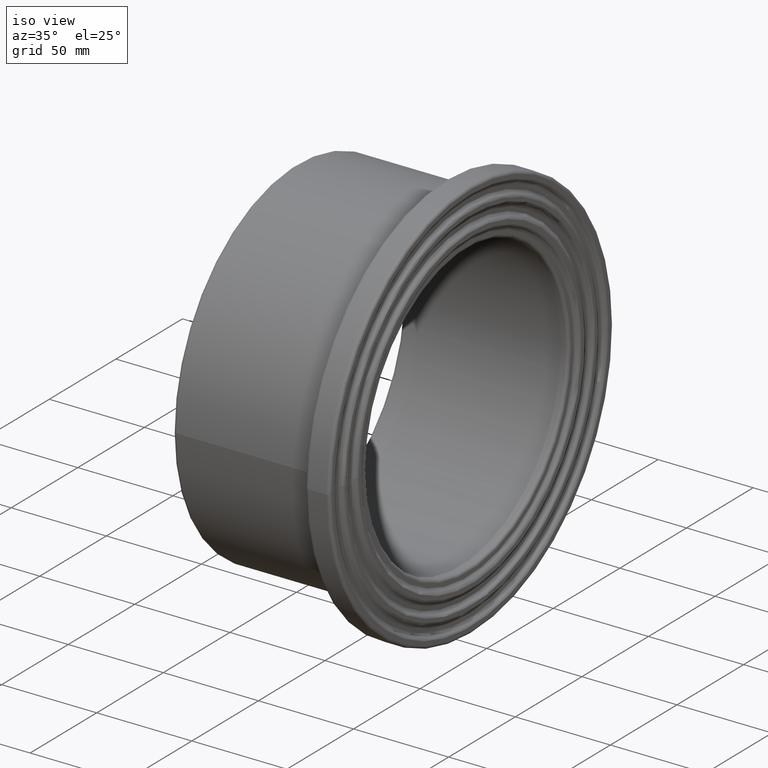
[diagram: clean part render]
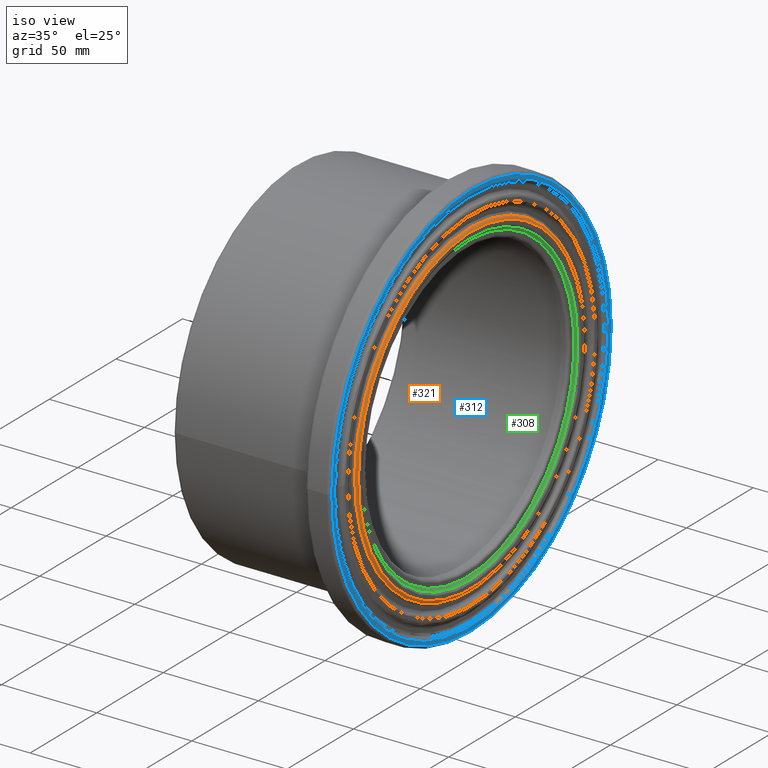
[diagram: same view with three faces highlighted in distinct colors, each labeled with its STEP entity id]
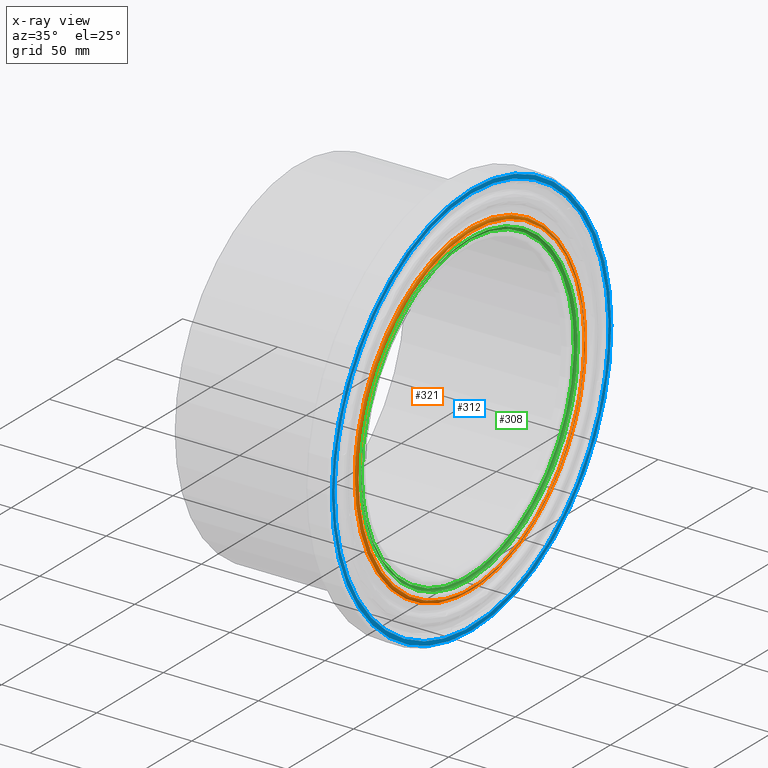
[diagram: x-ray of the same camera — body ghosted, the three highlighted faces saturated]
A machine part, iso view with three faces highlighted in distinct colors.
The next image is the same camera in x-ray (body ghosted, the three faces saturated) — at least one of them is partly hidden behind the body in this view.
Their STEP definitions:

[orange] entity #321 — the highlighted face is a freeform B-spline surface patch.
#18=B_SPLINE_SURFACE_WITH_KNOTS('',3,3,((#1589,#1590,#1591,#1592,#1593,
#1594,#1595,#1596,#1597,#1598,#1599,#1600,#1601,#1602,#1603,#1604,#1605,
#1606,#1607,#1608,#1609,#1610,#1611,#1612,#1613,#1614,#1615,#1616,#1617,
#1618,#1619,#1620,#1621,#1622,#1623,#1624,#1625,#1626,#1627,#1628,#1629,
#1630,#1631,#1632),(#1633,#1634,#1635,#1636,#1637,#1638,#1639,#1640,#1641,
#1642,#1643,#1644,#1645,#1646,#1647,#1648,#1649,#1650,#1651,#1652,#1653,
#1654,#1655,#1656,#1657,#1658,#1659,#1660,#1661,#1662,#1663,#1664,#1665,
#1666,#1667,#1668,#1669,#1670,#1671,#1672,#1673,#1674,#1675,#1676),(#1677,
#1678,#1679,#1680,#1681,#1682,#1683,#1684,#1685,#1686,#1687,#1688,#1689,
#1690,#1691,#1692,#1693,#1694,#1695,#1696,#1697,#1698,#1699,#1700,#1701,
#1702,#1703,#1704,#1705,#1706,#1707,#1708,#1709,#1710,#1711,#1712,#1713,
#1714,#1715,#1716,#1717,#1718,#1719,#1720),(#1721,#1722,#1723,#1724,#1725,
#1726,#1727,#1728,#1729,#1730,#1731,#1732,#1733,#1734,#1735,#1736,#1737,
#1738,#1739,#1740,#1741,#1742,#1743,#1744,#1745,#1746,#1747,#1748,#1749,
#1750,#1751,#1752,#1753,#1754,#1755,#1756,#1757,#1758,#1759,#1760,#1761,
#1762,#1763,#1764),(#1765,#1766,#1767,#1768,#1769,#1770,#1771,#1772,#1773,
#1774,#1775,#1776,#1777,#1778,#1779,#1780,#1781,#1782,#1783,#1784,#1785,
#1786,#1787,#1788,#1789,#1790,#1791,#1792,#1793,#1794,#1795,#1796,#1797,
#1798,#1799,#1800,#1801,#1802,#1803,#1804,#1805,#1806,#1807,#1808)),
 .UNSPECIFIED.,.F.,.T.,.F.,(4,1,4),(4,1,1,1,1,1,1,1,1,1,1,1,1,1,1,1,1,1,
1,1,1,1,1,1,1,1,1,1,1,1,1,1,1,1,1,1,1,1,1,1,1,4),(0.,0.5,1.),(26.487228518639,
28.3791734128275,30.271118307016,32.1630632012045,33.1090356482988,34.055008095393,
35.9469529895815,36.8929254366758,37.83889788377,38.7848703308643,39.7308427779585,
41.622787672147,42.2534359702099,42.8840842682727,45.406677460524,46.6679740566497,
47.9292706527754,49.190567248901,52.3438087392152,54.2357536334037,55.4970502295294,
56.758346825655,58.6502917198435,60.542236614032,62.4341815082205,63.3801539553148,
64.326126402409,65.2720988495033,66.2180712965975,68.110016190786,69.0559886378803,
70.0019610849745,70.4749473085217,71.8939059791631,72.8398784262573,73.7858508733516,
74.2588370968987,75.6777957675401,76.6237682146343,77.5697406617286,78.0427268852757,
79.4616855559171),.UNSPECIFIED.);
#26=B_SPLINE_CURVE_WITH_KNOTS('',3,(#794,#795,#796,#797,#798,#799,#800,
#801,#802,#803,#804,#805,#806,#807,#808,#809,#810,#811,#812,#813,#814,#815,
#816,#817,#818,#819,#820,#821,#822,#823,#824,#825,#826,#827,#828,#829,#830,
#831,#832,#833,#834,#835,#836,#837),.UNSPECIFIED.,.T.,.F.,(4,1,1,1,1,1,
1,1,1,1,1,1,1,1,1,1,1,1,1,1,1,1,1,1,1,1,1,1,1,1,1,1,1,1,1,1,1,1,1,1,1,4),
(26.487228518639,28.3791734128275,30.271118307016,32.1630632012045,33.1090356482988,
34.055008095393,35.9469529895815,36.8929254366758,37.83889788377,38.7848703308643,
39.7308427779585,41.622787672147,42.2534359702099,42.8840842682727,45.406677460524,
46.6679740566497,47.9292706527754,49.190567248901,52.3438087392152,54.2357536334037,
55.4970502295294,56.758346825655,58.6502917198435,60.542236614032,62.4341815082205,
63.3801539553148,64.326126402409,65.2720988495033,66.2180712965975,68.110016190786,
69.0559886378803,70.0019610849745,70.4749473085217,71.8939059791631,72.8398784262573,
73.7858508733516,74.2588370968987,75.6777957675401,76.6237682146343,77.5697406617286,
78.0427268852757,79.4616855559171),.UNSPECIFIED.);
#31=B_SPLINE_CURVE_WITH_KNOTS('',3,(#1811,#1812,#1813,#1814,#1815,#1816,
#1817,#1818,#1819,#1820,#1821,#1822,#1823,#1824,#1825,#1826,#1827,#1828,
#1829,#1830,#1831,#1832,#1833,#1834,#1835,#1836,#1837,#1838,#1839,#1840,
#1841,#1842,#1843,#1844,#1845,#1846,#1847,#1848,#1849,#1850,#1851,#1852,
#1853,#1854),.UNSPECIFIED.,.T.,.F.,(4,1,1,1,1,1,1,1,1,1,1,1,1,1,1,1,1,1,
1,1,1,1,1,1,1,1,1,1,1,1,1,1,1,1,1,1,1,1,1,1,1,4),(-79.4616855559171,-78.0427268852757,
-77.5697406617286,-76.6237682146343,-75.6777957675401,-74.2588370968987,
-73.7858508733516,-72.8398784262573,-71.8939059791631,-70.4749473085217,
-70.0019610849745,-69.0559886378803,-68.110016190786,-66.2180712965975,
-65.2720988495033,-64.326126402409,-63.3801539553148,-62.4341815082205,
-60.542236614032,-58.6502917198435,-56.758346825655,-55.4970502295294,-54.2357536334037,
-52.3438087392152,-49.190567248901,-47.9292706527754,-46.6679740566497,
-45.406677460524,-42.8840842682727,-42.2534359702099,-41.622787672147,-39.7308427779585,
-38.7848703308643,-37.83889788377,-36.8929254366758,-35.9469529895815,-34.055008095393,
-33.1090356482988,-32.1630632012045,-30.271118307016,-28.3791734128275,
-26.487228518639),.UNSPECIFIED.);
#82=FACE_OUTER_BOUND('',#123,.T.);
#123=EDGE_LOOP('',(#267,#268,#269,#270));
#160=CIRCLE('',#363,1.6);
#174=VERTEX_POINT('',#793);
#187=VERTEX_POINT('',#1809);
#203=EDGE_CURVE('',#174,#174,#26,.T.);
#218=EDGE_CURVE('',#187,#174,#160,.T.);
#219=EDGE_CURVE('',#187,#187,#31,.T.);
#267=ORIENTED_EDGE('',*,*,#218,.T.);
#268=ORIENTED_EDGE('',*,*,#203,.T.);
#269=ORIENTED_EDGE('',*,*,#218,.F.);
#270=ORIENTED_EDGE('',*,*,#219,.T.);
#321=ADVANCED_FACE('',(#82),#18,.F.);
#363=AXIS2_PLACEMENT_3D('',#1810,#439,#440);
#439=DIRECTION('center_axis',(0.,0.000811828910623053,0.999999670466856));
#440=DIRECTION('ref_axis',(0.390625,-0.920549591751763,0.000747329018516011));
#793=CARTESIAN_POINT('',(92.,-84.8208790510354,0.0688600645298008));
#794=CARTESIAN_POINT('Ctrl Pts',(92.,-84.8227414743535,0.069698457503577));
#795=CARTESIAN_POINT('Ctrl Pts',(92.0000000000001,-84.8231883214625,6.380686845047));
#796=CARTESIAN_POINT('Ctrl Pts',(91.9999999999999,-83.3499959075967,19.1838645484582));
#797=CARTESIAN_POINT('Ctrl Pts',(92.0000000000002,-77.0538152574253,37.1399260560175));
#798=CARTESIAN_POINT('Ctrl Pts',(91.9999999999998,-68.4858319648699,50.7493499922464));
#799=CARTESIAN_POINT('Ctrl Pts',(92.,-60.0458280906564,60.1556191856757));
#800=CARTESIAN_POINT('Ctrl Pts',(92.,-50.5556076934713,68.6324482399486));
#801=CARTESIAN_POINT('Ctrl Pts',(92.,-39.6816514688726,75.4353901055701));
#802=CARTESIAN_POINT('Ctrl Pts',(92.,-28.0054450257664,80.2498423101179));
#803=CARTESIAN_POINT('Ctrl Pts',(92.,-18.7943169331391,82.9005157436553));
#804=CARTESIAN_POINT('Ctrl Pts',(92.,-9.36414302376269,84.4788240394155));
#805=CARTESIAN_POINT('Ctrl Pts',(92.0000000000001,3.24926718290788,85.1720404218577));
#806=CARTESIAN_POINT('Ctrl Pts',(92.,14.9406762364304,83.8521794948574));
#807=CARTESIAN_POINT('Ctrl Pts',(91.9999999999999,25.1722498791431,81.0762508719896));
#808=CARTESIAN_POINT('Ctrl Pts',(92.0000000000001,37.0759822969812,76.913665095413));
#809=CARTESIAN_POINT('Ctrl Pts',(91.9999999999999,50.1435547795211,69.3273132206237));
#810=CARTESIAN_POINT('Ctrl Pts',(92.,62.4717901988116,57.8382053688914));
#811=CARTESIAN_POINT('Ctrl Pts',(92.,70.4446424299805,47.8151334572273));
#812=CARTESIAN_POINT('Ctrl Pts',(92.,79.944768156564,31.2890733292748));
#813=CARTESIAN_POINT('Ctrl Pts',(92.,85.4483883210158,10.6123454336669));
#814=CARTESIAN_POINT('Ctrl Pts',(92.,84.6703073712705,-10.5834034773765));
#815=CARTESIAN_POINT('Ctrl Pts',(91.9999999999999,81.3365324735196,-25.1485994816792));
#816=CARTESIAN_POINT('Ctrl Pts',(92.0000000000001,75.9544812296915,-38.8753234488265));
#817=CARTESIAN_POINT('Ctrl Pts',(91.9999999999999,66.8260124331252,-53.3923589740457));
#818=CARTESIAN_POINT('Ctrl Pts',(92.0000000000002,53.3571940152089,-66.8470210757113));
#819=CARTESIAN_POINT('Ctrl Pts',(91.9999999999999,39.7449382319974,-75.4131016735925));
#820=CARTESIAN_POINT('Ctrl Pts',(92.0000000000001,28.0746421476796,-80.2200464845206));
#821=CARTESIAN_POINT('Ctrl Pts',(92.,18.8919491811832,-82.8810432565065));
#822=CARTESIAN_POINT('Ctrl Pts',(92.,9.43622975990474,-84.4692242561619));
#823=CARTESIAN_POINT('Ctrl Pts',(92.,-3.17550496636332,-85.177424784952));
#824=CARTESIAN_POINT('Ctrl Pts',(91.9999999999999,-15.9104670021819,-83.7426180303363));
#825=CARTESIAN_POINT('Ctrl Pts',(92.0000000000001,-28.1486615253611,-80.201909013964));
#826=CARTESIAN_POINT('Ctrl Pts',(91.9999999999999,-35.4303220884872,-77.1789415770171));
#827=CARTESIAN_POINT('Ctrl Pts',(92.0000000000001,-43.9073646837832,-72.802024969922));
#828=CARTESIAN_POINT('Ctrl Pts',(91.9999999999999,-51.8902722261344,-67.4516834401652));
#829=CARTESIAN_POINT('Ctrl Pts',(92.,-60.1367829619202,-60.0677483937364));
#830=CARTESIAN_POINT('Ctrl Pts',(92.,-65.4192415330347,-54.1533637657458));
#831=CARTESIAN_POINT('Ctrl Pts',(92.,-71.1670944242498,-46.5085381449835));
#832=CARTESIAN_POINT('Ctrl Pts',(92.,-76.0173305476142,-38.2555492717316));
#833=CARTESIAN_POINT('Ctrl Pts',(92.,-80.2384510606079,-28.042242234472));
#834=CARTESIAN_POINT('Ctrl Pts',(92.,-82.4462888866889,-20.3737385670568));
#835=CARTESIAN_POINT('Ctrl Pts',(92.,-84.3007966580962,-10.9984908072516));
#836=CARTESIAN_POINT('Ctrl Pts',(92.,-84.8224063390218,-4.66354283315398));
#837=CARTESIAN_POINT('Ctrl Pts',(92.,-84.8227414743535,0.069698457503577));
#1589=CARTESIAN_POINT('Ctrl Pts',(92.,-84.8227414743535,0.069698457503577));
#1590=CARTESIAN_POINT('Ctrl Pts',(92.0000000000001,-84.8231883214625,6.380686845047));
#1591=CARTESIAN_POINT('Ctrl Pts',(91.9999999999999,-83.3499959075967,19.1838645484582));
#1592=CARTESIAN_POINT('Ctrl Pts',(92.0000000000002,-77.0538152574253,37.1399260560175));
#1593=CARTESIAN_POINT('Ctrl Pts',(91.9999999999998,-68.4858319648699,50.7493499922464));
#1594=CARTESIAN_POINT('Ctrl Pts',(92.,-60.0458280906564,60.1556191856757));
#1595=CARTESIAN_POINT('Ctrl Pts',(92.,-50.5556076934713,68.6324482399486));
#1596=CARTESIAN_POINT('Ctrl Pts',(92.,-39.6816514688726,75.4353901055701));
#1597=CARTESIAN_POINT('Ctrl Pts',(92.,-28.0054450257664,80.2498423101179));
#1598=CARTESIAN_POINT('Ctrl Pts',(92.,-18.7943169331391,82.9005157436553));
#1599=CARTESIAN_POINT('Ctrl Pts',(92.,-9.36414302376269,84.4788240394155));
#1600=CARTESIAN_POINT('Ctrl Pts',(92.0000000000001,3.24926718290788,85.1720404218577));
#1601=CARTESIAN_POINT('Ctrl Pts',(92.,14.9406762364304,83.8521794948574));
#1602=CARTESIAN_POINT('Ctrl Pts',(91.9999999999999,25.1722498791431,81.0762508719896));
#1603=CARTESIAN_POINT('Ctrl Pts',(92.0000000000001,37.0759822969812,76.913665095413));
#1604=CARTESIAN_POINT('Ctrl Pts',(91.9999999999999,50.1435547795211,69.3273132206237));
#1605=CARTESIAN_POINT('Ctrl Pts',(92.,62.4717901988116,57.8382053688914));
#1606=CARTESIAN_POINT('Ctrl Pts',(92.,70.4446424299805,47.8151334572273));
#1607=CARTESIAN_POINT('Ctrl Pts',(92.,79.944768156564,31.2890733292748));
#1608=CARTESIAN_POINT('Ctrl Pts',(92.,85.4483883210158,10.6123454336669));
#1609=CARTESIAN_POINT('Ctrl Pts',(92.,84.6703073712705,-10.5834034773765));
#1610=CARTESIAN_POINT('Ctrl Pts',(91.9999999999999,81.3365324735196,-25.1485994816792));
#1611=CARTESIAN_POINT('Ctrl Pts',(92.0000000000001,75.9544812296915,-38.8753234488265));
#1612=CARTESIAN_POINT('Ctrl Pts',(91.9999999999999,66.8260124331252,-53.3923589740457));
#1613=CARTESIAN_POINT('Ctrl Pts',(92.0000000000002,53.3571940152089,-66.8470210757113));
#1614=CARTESIAN_POINT('Ctrl Pts',(91.9999999999999,39.7449382319974,-75.4131016735925));
#1615=CARTESIAN_POINT('Ctrl Pts',(92.0000000000001,28.0746421476796,-80.2200464845206));
#1616=CARTESIAN_POINT('Ctrl Pts',(92.,18.8919491811832,-82.8810432565065));
#1617=CARTESIAN_POINT('Ctrl Pts',(92.,9.43622975990474,-84.4692242561619));
#1618=CARTESIAN_POINT('Ctrl Pts',(92.,-3.17550496636332,-85.177424784952));
#1619=CARTESIAN_POINT('Ctrl Pts',(91.9999999999999,-15.9104670021819,-83.7426180303363));
#1620=CARTESIAN_POINT('Ctrl Pts',(92.0000000000001,-28.1486615253611,-80.201909013964));
#1621=CARTESIAN_POINT('Ctrl Pts',(91.9999999999999,-35.4303220884872,-77.1789415770171));
#1622=CARTESIAN_POINT('Ctrl Pts',(92.0000000000001,-43.9073646837832,-72.802024969922));
#1623=CARTESIAN_POINT('Ctrl Pts',(91.9999999999999,-51.8902722261344,-67.4516834401652));
#1624=CARTESIAN_POINT('Ctrl Pts',(92.,-60.1367829619202,-60.0677483937364));
#1625=CARTESIAN_POINT('Ctrl Pts',(92.,-65.4192415330347,-54.1533637657458));
#1626=CARTESIAN_POINT('Ctrl Pts',(92.,-71.1670944242498,-46.5085381449835));
#1627=CARTESIAN_POINT('Ctrl Pts',(92.,-76.0173305476142,-38.2555492717316));
#1628=CARTESIAN_POINT('Ctrl Pts',(92.,-80.2384510606079,-28.042242234472));
#1629=CARTESIAN_POINT('Ctrl Pts',(92.,-82.4462888866889,-20.3737385670568));
#1630=CARTESIAN_POINT('Ctrl Pts',(92.,-84.3007966580962,-10.9984908072516));
#1631=CARTESIAN_POINT('Ctrl Pts',(92.,-84.8224063390218,-4.66354283315398));
#1632=CARTESIAN_POINT('Ctrl Pts',(92.,-84.8227414743535,0.069698457503577));
#1633=CARTESIAN_POINT('Ctrl Pts',(92.,-85.1346112823688,0.0699545601602209));
#1634=CARTESIAN_POINT('Ctrl Pts',(92.0000000000001,-85.1350597179297,6.40414941459323));
#1635=CARTESIAN_POINT('Ctrl Pts',(91.9999999999999,-83.6564511986257,19.254396291024));
#1636=CARTESIAN_POINT('Ctrl Pts',(92.0000000000002,-77.3371204615681,37.276480849057));
#1637=CARTESIAN_POINT('Ctrl Pts',(91.9999999999998,-68.7376363852934,50.9359398417961));
#1638=CARTESIAN_POINT('Ctrl Pts',(92.,-60.2666002999985,60.3767948428887));
#1639=CARTESIAN_POINT('Ctrl Pts',(92.,-50.7414848450309,68.8847921873475));
#1640=CARTESIAN_POINT('Ctrl Pts',(92.,-39.8275517944522,75.7127441168426));
#1641=CARTESIAN_POINT('Ctrl Pts',(92.,-28.1084136032008,80.5448990258587));
#1642=CARTESIAN_POINT('Ctrl Pts',(92.,-18.8634162785251,83.2053184356613));
#1643=CARTESIAN_POINT('Ctrl Pts',(92.,-9.39857472107161,84.7894292915458));
#1644=CARTESIAN_POINT('Ctrl Pts',(92.0000000000001,3.26122002039862,85.4851945565724));
#1645=CARTESIAN_POINT('Ctrl Pts',(92.,14.9956042330704,84.1604814077647));
#1646=CARTESIAN_POINT('Ctrl Pts',(91.9999999999999,25.2648007134263,81.3743462341979));
#1647=CARTESIAN_POINT('Ctrl Pts',(92.0000000000001,37.2123015578169,77.1964549768563));
#1648=CARTESIAN_POINT('Ctrl Pts',(91.9999999999999,50.3279181904559,69.582210893811));
#1649=CARTESIAN_POINT('Ctrl Pts',(92.,62.7014821099254,58.0508605076464));
#1650=CARTESIAN_POINT('Ctrl Pts',(92.,70.7036476067611,47.9909364694881));
#1651=CARTESIAN_POINT('Ctrl Pts',(92.,80.2387047514124,31.4041131655663));
#1652=CARTESIAN_POINT('Ctrl Pts',(92.,85.7625571810893,10.6513646990469));
#1653=CARTESIAN_POINT('Ctrl Pts',(92.,84.9816177613563,-10.622314560398));
#1654=CARTESIAN_POINT('Ctrl Pts',(91.9999999999999,81.6355840446169,-25.2410642596993));
#1655=CARTESIAN_POINT('Ctrl Pts',(92.0000000000001,76.2337447155367,-39.0182584511454));
#1656=CARTESIAN_POINT('Ctrl Pts',(91.9999999999999,67.0717140080417,-53.588666534872));
#1657=CARTESIAN_POINT('Ctrl Pts',(92.0000000000002,53.5533726220573,-67.0928008301904));
#1658=CARTESIAN_POINT('Ctrl Pts',(91.9999999999999,39.8910698251333,-75.6903740214493));
#1659=CARTESIAN_POINT('Ctrl Pts',(92.0000000000001,28.1778650862029,-80.5149939122592));
#1660=CARTESIAN_POINT('Ctrl Pts',(92.,18.9614086106445,-83.1857738120176));
#1661=CARTESIAN_POINT('Ctrl Pts',(92.,9.47092675990788,-84.7797945165672));
#1662=CARTESIAN_POINT('Ctrl Pts',(92.,-3.1871841237829,-85.4905982586971));
#1663=CARTESIAN_POINT('Ctrl Pts',(91.9999999999999,-15.9689619543969,-84.0505174402079));
#1664=CARTESIAN_POINT('Ctrl Pts',(92.0000000000001,-28.2521563221416,-80.4967893566681));
#1665=CARTESIAN_POINT('Ctrl Pts',(91.9999999999999,-35.5605898388679,-77.4627073236213));
#1666=CARTESIAN_POINT('Ctrl Pts',(92.0000000000001,-44.0688014816146,-73.069696848151));
#1667=CARTESIAN_POINT('Ctrl Pts',(91.9999999999999,-52.0810568475644,-67.6996862770187));
#1668=CARTESIAN_POINT('Ctrl Pts',(92.,-60.3578898574064,-60.2886002628917));
#1669=CARTESIAN_POINT('Ctrl Pts',(92.,-65.6597695626955,-54.3524717209782));
#1670=CARTESIAN_POINT('Ctrl Pts',(92.,-71.4287575759092,-46.6795346776345));
#1671=CARTESIAN_POINT('Ctrl Pts',(92.,-76.296823921399,-38.3962081507507));
#1672=CARTESIAN_POINT('Ctrl Pts',(92.,-80.5334668732625,-28.1453421804399));
#1673=CARTESIAN_POINT('Ctrl Pts',(92.,-82.7494205097734,-20.4486508135393));
#1674=CARTESIAN_POINT('Ctrl Pts',(92.,-84.6107479058376,-11.038925536064));
#1675=CARTESIAN_POINT('Ctrl Pts',(92.,-85.1342749556981,-4.68069158066453));
#1676=CARTESIAN_POINT('Ctrl Pts',(92.,-85.1346112823688,0.0699545601602209));
#1677=CARTESIAN_POINT('Ctrl Pts',(91.8120779465256,-85.7575124782178,0.0704668364540449));
#1678=CARTESIAN_POINT('Ctrl Pts',(91.8120779465256,-85.757964346103,6.45099934586559));
#1679=CARTESIAN_POINT('Ctrl Pts',(91.8120779465256,-84.2685361913814,19.3952798483259));
#1680=CARTESIAN_POINT('Ctrl Pts',(91.8120779465255,-77.9029711794768,37.5492160038055));
#1681=CARTESIAN_POINT('Ctrl Pts',(91.8120779465256,-69.2405639011345,51.3086250821658));
#1682=CARTESIAN_POINT('Ctrl Pts',(91.8120779465255,-60.7075499007738,60.8185513209874));
#1683=CARTESIAN_POINT('Ctrl Pts',(91.8120779465256,-51.1127483263109,69.3887951169219));
#1684=CARTESIAN_POINT('Ctrl Pts',(91.8120779465255,-40.1189514136068,76.2667117383576));
#1685=CARTESIAN_POINT('Ctrl Pts',(91.8120779465256,-28.3140725775589,81.134218303789));
#1686=CARTESIAN_POINT('Ctrl Pts',(91.8120779465256,-19.0014395506336,83.8141025993925));
#1687=CARTESIAN_POINT('Ctrl Pts',(91.8120779465256,-9.46733445379179,85.4098050917306));
#1688=CARTESIAN_POINT('Ctrl Pts',(91.8120779465256,3.2850641094793,86.1106607105499));
#1689=CARTESIAN_POINT('Ctrl Pts',(91.8120779465256,15.1053351821306,84.7762535767101));
#1690=CARTESIAN_POINT('Ctrl Pts',(91.8120779465255,25.4496563389249,81.9697338243814));
#1691=CARTESIAN_POINT('Ctrl Pts',(91.8120779465257,37.4845683245584,77.761276574105));
#1692=CARTESIAN_POINT('Ctrl Pts',(91.8120779465254,50.6961522340229,70.0913196573965));
#1693=CARTESIAN_POINT('Ctrl Pts',(91.8120779465257,63.1602466166788,58.4755989861614));
#1694=CARTESIAN_POINT('Ctrl Pts',(91.8120779465256,71.2209632308069,48.3420700415617));
#1695=CARTESIAN_POINT('Ctrl Pts',(91.8120779465256,80.8257793984161,31.6338904808666));
#1696=CARTESIAN_POINT('Ctrl Pts',(91.8120779465256,86.3900563954386,10.7292954699228));
#1697=CARTESIAN_POINT('Ctrl Pts',(91.8120779465256,85.6033966670936,-10.7000376979375));
#1698=CARTESIAN_POINT('Ctrl Pts',(91.8120779465256,82.2328851747005,-25.4257437154266));
#1699=CARTESIAN_POINT('Ctrl Pts',(91.8120779465256,76.791521768588,-39.3037386259212));
#1700=CARTESIAN_POINT('Ctrl Pts',(91.8120779465255,67.5624529413099,-53.980760611807));
#1701=CARTESIAN_POINT('Ctrl Pts',(91.8120779465257,53.9452075272268,-67.5836914481063));
#1702=CARTESIAN_POINT('Ctrl Pts',(91.8120779465255,40.1829381281463,-76.2441771772122));
#1703=CARTESIAN_POINT('Ctrl Pts',(91.8120779465257,28.3840323736162,-81.1040936542626));
#1704=CARTESIAN_POINT('Ctrl Pts',(91.8120779465254,19.1001457574093,-83.7944164779587));
#1705=CARTESIAN_POINT('Ctrl Pts',(91.8120779465256,9.54021514708199,-85.400098978195));
#1706=CARTESIAN_POINT('Ctrl Pts',(91.8120779465255,-3.21049339416798,-86.1161052208243));
#1707=CARTESIAN_POINT('Ctrl Pts',(91.8120779465256,-16.0858110163372,-84.6654841396932));
#1708=CARTESIAN_POINT('Ctrl Pts',(91.8120779465256,-28.4588679802135,-81.0857570087294));
#1709=CARTESIAN_POINT('Ctrl Pts',(91.8120779465255,-35.8207740102954,-78.0294755645349));
#1710=CARTESIAN_POINT('Ctrl Pts',(91.8120779465256,-44.3912337498404,-73.6043261196761));
#1711=CARTESIAN_POINT('Ctrl Pts',(91.8120779465255,-52.4621207562529,-68.1950175324442));
#1712=CARTESIAN_POINT('Ctrl Pts',(91.8120779465256,-60.7995066428391,-60.7297134263309));
#1713=CARTESIAN_POINT('Ctrl Pts',(91.8120779465256,-66.1401812098486,-54.7501476668784));
#1714=CARTESIAN_POINT('Ctrl Pts',(91.8120779465256,-71.9513738136587,-47.021080077469));
#1715=CARTESIAN_POINT('Ctrl Pts',(91.8120779465256,-76.8550658124344,-38.677129732009));
#1716=CARTESIAN_POINT('Ctrl Pts',(91.8120779465256,-81.1226997866155,-28.3512822458667));
#1717=CARTESIAN_POINT('Ctrl Pts',(91.8120779465256,-83.3548718049036,-20.598256596825));
#1718=CARTESIAN_POINT('Ctrl Pts',(91.8120779465255,-85.2298148187914,-11.1197038606121));
#1719=CARTESIAN_POINT('Ctrl Pts',(91.8120779465256,-85.7571735773039,-4.71493254560461));
#1720=CARTESIAN_POINT('Ctrl Pts',(91.8120779465256,-85.7575124782178,0.0704668364540449));
#1721=CARTESIAN_POINT('Ctrl Pts',(91.3120853635151,-86.1738299310824,0.0708077888283308));
#1722=CARTESIAN_POINT('Ctrl Pts',(91.312085363515,-86.1742836044605,6.48233442709493));
#1723=CARTESIAN_POINT('Ctrl Pts',(91.3120853635152,-84.6776278554693,19.4894214762359));
#1724=CARTESIAN_POINT('Ctrl Pts',(91.3120853635149,-78.281155168612,37.7315129480711));
#1725=CARTESIAN_POINT('Ctrl Pts',(91.3120853635151,-69.5767049120195,51.557696648698));
#1726=CARTESIAN_POINT('Ctrl Pts',(91.312085363515,-61.0022620329583,61.1138007258492));
#1727=CARTESIAN_POINT('Ctrl Pts',(91.3120853635151,-51.3608664196561,69.7256590022828));
#1728=CARTESIAN_POINT('Ctrl Pts',(91.312085363515,-40.3137255731683,76.6369474430052));
#1729=CARTESIAN_POINT('Ctrl Pts',(91.3120853635151,-28.4515277925626,81.5280929595553));
#1730=CARTESIAN_POINT('Ctrl Pts',(91.3120853635151,-19.0936682618772,84.2209882855482));
#1731=CARTESIAN_POINT('Ctrl Pts',(91.312085363515,-9.51331105455084,85.8244340951644));
#1732=CARTESIAN_POINT('Ctrl Pts',(91.3120853635151,3.3010557648008,86.5286929153314));
#1733=CARTESIAN_POINT('Ctrl Pts',(91.312085363515,15.1786315600268,85.1878116487191));
#1734=CARTESIAN_POINT('Ctrl Pts',(91.312085363515,25.5731998172606,82.3676657775398));
#1735=CARTESIAN_POINT('Ctrl Pts',(91.3120853635151,37.6665483771057,78.1387724859113));
#1736=CARTESIAN_POINT('Ctrl Pts',(91.3120853635151,50.9422569312167,70.4315861669986));
#1737=CARTESIAN_POINT('Ctrl Pts',(91.312085363515,63.4668663571066,58.7594741251579));
#1738=CARTESIAN_POINT('Ctrl Pts',(91.3120853635151,71.5667093673043,48.5767506548939));
#1739=CARTESIAN_POINT('Ctrl Pts',(91.3120853635149,81.2181677710298,31.7874496781154));
#1740=CARTESIAN_POINT('Ctrl Pts',(91.3120853635153,86.8094354790135,10.7813860640471));
#1741=CARTESIAN_POINT('Ctrl Pts',(91.3120853635148,86.0189733616902,-10.7519736421588));
#1742=CARTESIAN_POINT('Ctrl Pts',(91.3120853635152,82.6320891001417,-25.5491775176524));
#1743=CARTESIAN_POINT('Ctrl Pts',(91.312085363515,77.1643117628889,-39.4945504346376));
#1744=CARTESIAN_POINT('Ctrl Pts',(91.312085363515,67.8904463647895,-54.2428049866999));
#1745=CARTESIAN_POINT('Ctrl Pts',(91.3120853635152,54.2070817135879,-67.9117946482598));
#1746=CARTESIAN_POINT('Ctrl Pts',(91.312085363515,40.3780127975641,-76.6143055162246));
#1747=CARTESIAN_POINT('Ctrl Pts',(91.3120853635151,28.5218268040937,-81.4978239410991));
#1748=CARTESIAN_POINT('Ctrl Pts',(91.312085363515,19.1928616062522,-84.2012027380601));
#1749=CARTESIAN_POINT('Ctrl Pts',(91.312085363515,9.58654740353578,-85.8146830284168));
#1750=CARTESIAN_POINT('Ctrl Pts',(91.312085363515,-3.22610539424833,-86.5341605950737));
#1751=CARTESIAN_POINT('Ctrl Pts',(91.3120853635151,-16.1638764812694,-85.0765067815318));
#1752=CARTESIAN_POINT('Ctrl Pts',(91.3120853635151,-28.5970236367292,-81.479395439238));
#1753=CARTESIAN_POINT('Ctrl Pts',(91.312085363515,-35.9946708126914,-78.4082771536569));
#1754=CARTESIAN_POINT('Ctrl Pts',(91.312085363515,-44.606745882523,-73.9616372060497));
#1755=CARTESIAN_POINT('Ctrl Pts',(91.3120853635151,-52.7167914695731,-68.5260877978968));
#1756=CARTESIAN_POINT('Ctrl Pts',(91.3120853635149,-61.0946671120724,-61.0245264914851));
#1757=CARTESIAN_POINT('Ctrl Pts',(91.3120853635151,-66.4612612766924,-55.0159441253072));
#1758=CARTESIAN_POINT('Ctrl Pts',(91.3120853635149,-72.3006780347783,-47.2493300934888));
#1759=CARTESIAN_POINT('Ctrl Pts',(91.3120853635151,-77.2281557972718,-38.8649182442083));
#1760=CARTESIAN_POINT('Ctrl Pts',(91.312085363515,-81.5165255021773,-28.4888901383033));
#1761=CARTESIAN_POINT('Ctrl Pts',(91.3120853635151,-83.7595209749032,-20.6982785451172));
#1762=CARTESIAN_POINT('Ctrl Pts',(91.312085363515,-85.6435739842893,-11.1736591885899));
#1763=CARTESIAN_POINT('Ctrl Pts',(91.3120853635151,-86.1734896760489,-4.73783718987161));
#1764=CARTESIAN_POINT('Ctrl Pts',(91.3120853635151,-86.1738299310824,0.0708077888283308));
#1765=CARTESIAN_POINT('Ctrl Pts',(91.025,-86.295653161364,0.0709087422790998));
#1766=CARTESIAN_POINT('Ctrl Pts',(91.025,-86.2961077677874,6.49148482282826));
#1767=CARTESIAN_POINT('Ctrl Pts',(91.025,-84.7973339793296,19.5169843911362));
#1768=CARTESIAN_POINT('Ctrl Pts',(91.025,-78.3918227663634,37.7848454513563));
#1769=CARTESIAN_POINT('Ctrl Pts',(91.0249999999999,-69.6750600013887,51.6305913835584));
#1770=CARTESIAN_POINT('Ctrl Pts',(91.025,-61.088498964218,61.2001965360166));
#1771=CARTESIAN_POINT('Ctrl Pts',(91.0250000000001,-51.4334848302077,69.8242222072086));
#1772=CARTESIAN_POINT('Ctrl Pts',(91.0249999999998,-40.3707068706725,76.7452943337219));
#1773=CARTESIAN_POINT('Ctrl Pts',(91.0250000000001,-28.4917479506825,81.6433475018248));
#1774=CARTESIAN_POINT('Ctrl Pts',(91.025,-19.1206724432185,84.3400487789668));
#1775=CARTESIAN_POINT('Ctrl Pts',(91.025,-9.52674747934619,85.945763742964));
#1776=CARTESIAN_POINT('Ctrl Pts',(91.025,3.30568935843224,86.6510175400614));
#1777=CARTESIAN_POINT('Ctrl Pts',(91.025,15.2001148758563,85.3082377760747));
#1778=CARTESIAN_POINT('Ctrl Pts',(91.025,25.6093555466903,82.4841063052456));
#1779=CARTESIAN_POINT('Ctrl Pts',(91.025,37.719791335494,78.2492389549787));
#1780=CARTESIAN_POINT('Ctrl Pts',(91.0250000000001,51.0142767884924,70.5311532297627));
#1781=CARTESIAN_POINT('Ctrl Pts',(91.0249999999999,63.5565868971135,58.842541790502));
#1782=CARTESIAN_POINT('Ctrl Pts',(91.0250000000001,71.6678843969211,48.6454233967055));
#1783=CARTESIAN_POINT('Ctrl Pts',(91.0249999999999,81.3329758622623,31.8323950963076));
#1784=CARTESIAN_POINT('Ctrl Pts',(91.025,86.9321641057479,10.7966244058405));
#1785=CARTESIAN_POINT('Ctrl Pts',(91.025,86.140572103372,-10.7671798844959));
#1786=CARTESIAN_POINT('Ctrl Pts',(91.025,82.7489075887165,-25.5852944698942));
#1787=CARTESIAN_POINT('Ctrl Pts',(91.025,77.2733992596853,-39.5503772993485));
#1788=CARTESIAN_POINT('Ctrl Pts',(91.025,67.986418392638,-54.3194951189403));
#1789=CARTESIAN_POINT('Ctrl Pts',(91.025,54.283719535194,-68.0077918415798));
#1790=CARTESIAN_POINT('Ctrl Pts',(91.025,40.435092582162,-76.7226188723773));
#1791=CARTESIAN_POINT('Ctrl Pts',(91.025,28.5621466518869,-81.6130342840873));
#1792=CARTESIAN_POINT('Ctrl Pts',(91.025,19.2200000347126,-84.3202381601638));
#1793=CARTESIAN_POINT('Ctrl Pts',(91.0249999999999,9.60008597173072,-85.93599726346));
#1794=CARTESIAN_POINT('Ctrl Pts',(91.0250000000001,-3.23064629162374,-86.6564954003854));
#1795=CARTESIAN_POINT('Ctrl Pts',(91.0249999999999,-16.1867456555945,-85.1967738222123));
#1796=CARTESIAN_POINT('Ctrl Pts',(91.0250000000001,-28.6374513453286,-81.5945818638853));
#1797=CARTESIAN_POINT('Ctrl Pts',(91.025,-36.0455549207631,-78.5191218525421));
#1798=CARTESIAN_POINT('Ctrl Pts',(91.025,-44.6697978410294,-74.0662019058755));
#1799=CARTESIAN_POINT('Ctrl Pts',(91.025,-52.7913252583232,-68.6229539169345));
#1800=CARTESIAN_POINT('Ctrl Pts',(91.0249999999999,-61.1810332290564,-61.1107999042596));
#1801=CARTESIAN_POINT('Ctrl Pts',(91.025,-66.5552194999636,-55.0937144428766));
#1802=CARTESIAN_POINT('Ctrl Pts',(91.025,-72.4028814701064,-47.3161395993674));
#1803=CARTESIAN_POINT('Ctrl Pts',(91.025,-77.3373399299185,-38.9198410010006));
#1804=CARTESIAN_POINT('Ctrl Pts',(91.025,-81.6317584479967,-28.5291841276389));
#1805=CARTESIAN_POINT('Ctrl Pts',(91.025,-83.8779344612257,-20.7275200780279));
#1806=CARTESIAN_POINT('Ctrl Pts',(91.0249999999999,-85.7646449900857,-11.1894750335087));
#1807=CARTESIAN_POINT('Ctrl Pts',(91.0250000000001,-86.2953122065464,-4.74452331813276));
#1808=CARTESIAN_POINT('Ctrl Pts',(91.025,-86.295653161364,0.0709087422790998));
#1809=CARTESIAN_POINT('',(91.025,-86.2937583978382,0.0700557909594264));
#1810=CARTESIAN_POINT('Origin',(90.4,-84.8208790510354,0.0688600645298008));
#1811=CARTESIAN_POINT('Ctrl Pts',(91.025,-86.295653161364,0.0709087422790998));
#1812=CARTESIAN_POINT('Ctrl Pts',(91.0250000000001,-86.2953122065464,-4.74452331813276));
#1813=CARTESIAN_POINT('Ctrl Pts',(91.0249999999999,-85.7646449900857,-11.1894750335087));
#1814=CARTESIAN_POINT('Ctrl Pts',(91.025,-83.8779344612257,-20.7275200780279));
#1815=CARTESIAN_POINT('Ctrl Pts',(91.025,-81.6317584479967,-28.5291841276389));
#1816=CARTESIAN_POINT('Ctrl Pts',(91.025,-77.3373399299185,-38.9198410010006));
#1817=CARTESIAN_POINT('Ctrl Pts',(91.025,-72.4028814701064,-47.3161395993674));
#1818=CARTESIAN_POINT('Ctrl Pts',(91.025,-66.5552194999636,-55.0937144428766));
#1819=CARTESIAN_POINT('Ctrl Pts',(91.0249999999999,-61.1810332290564,-61.1107999042596));
#1820=CARTESIAN_POINT('Ctrl Pts',(91.025,-52.7913252583232,-68.6229539169345));
#1821=CARTESIAN_POINT('Ctrl Pts',(91.025,-44.6697978410294,-74.0662019058755));
#1822=CARTESIAN_POINT('Ctrl Pts',(91.025,-36.0455549207631,-78.5191218525421));
#1823=CARTESIAN_POINT('Ctrl Pts',(91.0250000000001,-28.6374513453286,-81.5945818638853));
#1824=CARTESIAN_POINT('Ctrl Pts',(91.0249999999999,-16.1867456555945,-85.1967738222123));
#1825=CARTESIAN_POINT('Ctrl Pts',(91.0250000000001,-3.23064629162374,-86.6564954003854));
#1826=CARTESIAN_POINT('Ctrl Pts',(91.0249999999999,9.60008597173072,-85.93599726346));
#1827=CARTESIAN_POINT('Ctrl Pts',(91.025,19.2200000347126,-84.3202381601638));
#1828=CARTESIAN_POINT('Ctrl Pts',(91.025,28.5621466518869,-81.6130342840873));
#1829=CARTESIAN_POINT('Ctrl Pts',(91.025,40.435092582162,-76.7226188723773));
#1830=CARTESIAN_POINT('Ctrl Pts',(91.025,54.283719535194,-68.0077918415798));
#1831=CARTESIAN_POINT('Ctrl Pts',(91.025,67.986418392638,-54.3194951189403));
#1832=CARTESIAN_POINT('Ctrl Pts',(91.025,77.2733992596853,-39.5503772993485));
#1833=CARTESIAN_POINT('Ctrl Pts',(91.025,82.7489075887165,-25.5852944698942));
#1834=CARTESIAN_POINT('Ctrl Pts',(91.025,86.140572103372,-10.7671798844959));
#1835=CARTESIAN_POINT('Ctrl Pts',(91.025,86.9321641057479,10.7966244058405));
#1836=CARTESIAN_POINT('Ctrl Pts',(91.0249999999999,81.3329758622623,31.8323950963076));
#1837=CARTESIAN_POINT('Ctrl Pts',(91.0250000000001,71.6678843969211,48.6454233967055));
#1838=CARTESIAN_POINT('Ctrl Pts',(91.0249999999999,63.5565868971135,58.842541790502));
#1839=CARTESIAN_POINT('Ctrl Pts',(91.0250000000001,51.0142767884924,70.5311532297627));
#1840=CARTESIAN_POINT('Ctrl Pts',(91.025,37.719791335494,78.2492389549787));
#1841=CARTESIAN_POINT('Ctrl Pts',(91.025,25.6093555466903,82.4841063052456));
#1842=CARTESIAN_POINT('Ctrl Pts',(91.025,15.2001148758563,85.3082377760747));
#1843=CARTESIAN_POINT('Ctrl Pts',(91.025,3.30568935843224,86.6510175400614));
#1844=CARTESIAN_POINT('Ctrl Pts',(91.025,-9.52674747934619,85.945763742964));
#1845=CARTESIAN_POINT('Ctrl Pts',(91.025,-19.1206724432185,84.3400487789668));
#1846=CARTESIAN_POINT('Ctrl Pts',(91.0250000000001,-28.4917479506825,81.6433475018248));
#1847=CARTESIAN_POINT('Ctrl Pts',(91.0249999999998,-40.3707068706725,76.7452943337219));
#1848=CARTESIAN_POINT('Ctrl Pts',(91.0250000000001,-51.4334848302077,69.8242222072086));
#1849=CARTESIAN_POINT('Ctrl Pts',(91.025,-61.088498964218,61.2001965360166));
#1850=CARTESIAN_POINT('Ctrl Pts',(91.0249999999999,-69.6750600013887,51.6305913835584));
#1851=CARTESIAN_POINT('Ctrl Pts',(91.025,-78.3918227663634,37.7848454513563));
#1852=CARTESIAN_POINT('Ctrl Pts',(91.025,-84.7973339793296,19.5169843911362));
#1853=CARTESIAN_POINT('Ctrl Pts',(91.025,-86.2961077677874,6.49148482282826));
#1854=CARTESIAN_POINT('Ctrl Pts',(91.025,-86.295653161364,0.0709087422790998));

[blue] entity #312 — the highlighted planar face has unit normal (1, 0, 0).
#28=B_SPLINE_CURVE_WITH_KNOTS('',3,(#1135,#1136,#1137,#1138,#1139,#1140,
#1141,#1142,#1143,#1144,#1145,#1146,#1147,#1148,#1149,#1150,#1151,#1152,
#1153,#1154,#1155,#1156,#1157,#1158,#1159,#1160,#1161,#1162,#1163,#1164,
#1165,#1166,#1167,#1168,#1169,#1170,#1171,#1172,#1173,#1174,#1175,#1176,
#1177,#1178,#1179,#1180,#1181,#1182,#1183),.UNSPECIFIED.,.T.,.F.,(4,1,1,
1,1,1,1,1,1,1,1,1,1,1,1,1,1,1,1,1,1,1,1,1,1,1,1,1,1,1,1,1,1,1,1,1,1,1,1,
1,1,1,1,1,1,1,4),(-32.0898698864891,-31.2303198002439,-30.9438031048288,
-29.7977363231685,-27.5056027598478,-25.7865025873573,-25.2134691965272,
-24.0674024148669,-22.9213356332065,-21.3932465909928,-20.8202132001626,
-19.865157548779,-18.3370685065652,-17.1910017249049,-16.0449349432446,
-14.3258347707541,-13.7528013799239,-11.4606678166033,-9.16853425328261,
-8.30898416703737,-8.02246747162229,-6.87640068996196,-5.73033390830163,
-4.58426712664131,-0.764044521106888,1.52808904221376,3.05617808442753,
4.5842671266413,6.11235616885507,7.64044521106884,9.16853425328261,10.6966232954964,
12.7340753517814,13.7528013799239,15.2808904221377,16.8089794643514,18.3370685065652,
19.865157548779,21.3932465909928,22.9213356332065,24.0674024148669,25.2134691965272,
27.5056027598478,28.6516695415082,29.7977363231685,30.9438031048288,32.0898698864891),
 .UNSPECIFIED.);
#36=PLANE('',#346);
#48=FACE_BOUND('',#107,.T.);
#73=FACE_OUTER_BOUND('',#106,.T.);
#106=EDGE_LOOP('',(#247));
#107=EDGE_LOOP('',(#248));
#151=CIRCLE('',#347,104.9);
#175=VERTEX_POINT('',#1083);
#177=VERTEX_POINT('',#1185);
#206=EDGE_CURVE('',#175,#175,#28,.T.);
#207=EDGE_CURVE('',#177,#177,#151,.T.);
#247=ORIENTED_EDGE('',*,*,#207,.F.);
#248=ORIENTED_EDGE('',*,*,#206,.F.);
#312=ADVANCED_FACE('',(#73,#48),#36,.T.);
#346=AXIS2_PLACEMENT_3D('',#1184,#405,#406);
#347=AXIS2_PLACEMENT_3D('',#1186,#407,#408);
#405=DIRECTION('center_axis',(1.,0.,0.));
#406=DIRECTION('ref_axis',(0.,0.,-1.));
#407=DIRECTION('center_axis',(-1.,0.,0.));
#408=DIRECTION('ref_axis',(0.,1.,6.12323399573677E-17));
#1083=CARTESIAN_POINT('',(92.,-102.762392467372,-0.0834255086212042));
#1135=CARTESIAN_POINT('Ctrl Pts',(92.0000000000002,-102.762643347441,-0.0858685640371876));
#1136=CARTESIAN_POINT('Ctrl Pts',(92.0000000000002,-102.759967738326,-2.95937879090926));
#1137=CARTESIAN_POINT('Ctrl Pts',(91.9999999999999,-102.595094315741,-6.79696675524114));
#1138=CARTESIAN_POINT('Ctrl Pts',(92.,-101.837572896264,-14.4619694933293));
#1139=CARTESIAN_POINT('Ctrl Pts',(92.,-99.7072765763031,-26.8709974517192));
#1140=CARTESIAN_POINT('Ctrl Pts',(92.0000000000001,-93.9794965120418,-43.1849489286487));
#1141=CARTESIAN_POINT('Ctrl Pts',(91.9999999999999,-86.0995207450887,-56.5324377840695));
#1142=CARTESIAN_POINT('Ctrl Pts',(92.0000000000001,-79.1278347027731,-65.76067651672));
#1143=CARTESIAN_POINT('Ctrl Pts',(92.,-72.7504258678559,-72.8804227026704));
#1144=CARTESIAN_POINT('Ctrl Pts',(92.0000000000001,-63.16936955043,-81.4322407636262));
#1145=CARTESIAN_POINT('Ctrl Pts',(92.,-54.0892748852763,-87.6045626113768));
#1146=CARTESIAN_POINT('Ctrl Pts',(92.,-45.0704889305202,-92.458895979116));
#1147=CARTESIAN_POINT('Ctrl Pts',(91.9999999999999,-35.7577913050196,-96.6135326521456));
#1148=CARTESIAN_POINT('Ctrl Pts',(92.0000000000001,-24.0462594655838,-100.219587223518));
#1149=CARTESIAN_POINT('Ctrl Pts',(92.,-11.3419307724805,-102.349738960038));
#1150=CARTESIAN_POINT('Ctrl Pts',(91.9999999999999,2.02396806530199,-103.080709247795));
#1151=CARTESIAN_POINT('Ctrl Pts',(92.0000000000002,13.5908228393671,-102.101263532544));
#1152=CARTESIAN_POINT('Ctrl Pts',(91.9999999999999,28.7324773227354,-99.0523423031702));
#1153=CARTESIAN_POINT('Ctrl Pts',(92.0000000000002,45.032635697959,-93.3352076281324));
#1154=CARTESIAN_POINT('Ctrl Pts',(92.,60.7056338284964,-83.4621680431652));
#1155=CARTESIAN_POINT('Ctrl Pts',(92.,69.3510655272564,-75.9087163405874));
#1156=CARTESIAN_POINT('Ctrl Pts',(92.0000000000001,74.8354652630146,-70.5623228474635));
#1157=CARTESIAN_POINT('Ctrl Pts',(91.9999999999999,80.6133078902734,-64.0883492423161));
#1158=CARTESIAN_POINT('Ctrl Pts',(92.0000000000001,87.3058840592533,-54.5981418749171));
#1159=CARTESIAN_POINT('Ctrl Pts',(91.9999999999999,97.1881196542304,-36.673920081814));
#1160=CARTESIAN_POINT('Ctrl Pts',(92.0000000000001,103.525553645694,-12.8489070830863));
#1161=CARTESIAN_POINT('Ctrl Pts',(92.,102.576572609576,12.817340553496));
#1162=CARTESIAN_POINT('Ctrl Pts',(92.0000000000001,98.5443523258701,30.4730553777186));
#1163=CARTESIAN_POINT('Ctrl Pts',(92.,92.94378850866,44.7155491688063));
#1164=CARTESIAN_POINT('Ctrl Pts',(92.,85.2096177453151,58.138754177531));
#1165=CARTESIAN_POINT('Ctrl Pts',(92.0000000000001,75.5711161129433,70.1915051425982));
#1166=CARTESIAN_POINT('Ctrl Pts',(92.,64.3386812590782,80.6245599044673));
#1167=CARTESIAN_POINT('Ctrl Pts',(92.,50.0668060626594,90.3476673009846));
#1168=CARTESIAN_POINT('Ctrl Pts',(92.,36.0773266404447,96.6388518254099));
#1169=CARTESIAN_POINT('Ctrl Pts',(92.0000000000001,21.2232131856955,100.830935173881));
#1170=CARTESIAN_POINT('Ctrl Pts',(91.9999999999999,7.60756808005763,102.8589953033));
#1171=CARTESIAN_POINT('Ctrl Pts',(92.0000000000002,-7.69380414894535,102.860214053379));
#1172=CARTESIAN_POINT('Ctrl Pts',(91.9999999999999,-23.049304380649,100.542581758597));
#1173=CARTESIAN_POINT('Ctrl Pts',(92.0000000000001,-37.7405187245764,95.9878076061209));
#1174=CARTESIAN_POINT('Ctrl Pts',(91.9999999999999,-51.5907039040643,89.3215156134132));
#1175=CARTESIAN_POINT('Ctrl Pts',(92.0000000000002,-63.3527317719107,81.2884501056643));
#1176=CARTESIAN_POINT('Ctrl Pts',(91.9999999999999,-72.8488415658338,72.7780970603687));
#1177=CARTESIAN_POINT('Ctrl Pts',(92.0000000000001,-83.113719538797,61.2978231207695));
#1178=CARTESIAN_POINT('Ctrl Pts',(92.,-91.3736074697122,48.1110705519611));
#1179=CARTESIAN_POINT('Ctrl Pts',(92.,-97.2081726223736,33.973612858543));
#1180=CARTESIAN_POINT('Ctrl Pts',(92.0000000000001,-100.423205596162,22.8260669590269));
#1181=CARTESIAN_POINT('Ctrl Pts',(91.9999999999998,-102.343196600526,11.3915296896668));
#1182=CARTESIAN_POINT('Ctrl Pts',(92.0000000000003,-102.766210826261,3.74547840512559));
#1183=CARTESIAN_POINT('Ctrl Pts',(92.0000000000002,-102.762643347441,-0.0858685640371876));
#1184=CARTESIAN_POINT('Origin',(92.,-106.5,0.));
#1185=CARTESIAN_POINT('',(92.,-104.9,6.42327246152787E-15));
#1186=CARTESIAN_POINT('Origin',(92.,0.,0.));

[green] entity #308 — the highlighted face is a freeform B-spline surface patch.
#15=B_SPLINE_SURFACE_WITH_KNOTS('',3,3,((#529,#530,#531,#532,#533,#534,
#535,#536,#537,#538,#539,#540,#541,#542,#543,#544,#545,#546,#547,#548,#549,
#550,#551,#552,#553,#554,#555,#556,#557,#558,#559,#560,#561,#562,#563,#564,
#565,#566,#567,#568,#569,#570,#571),(#572,#573,#574,#575,#576,#577,#578,
#579,#580,#581,#582,#583,#584,#585,#586,#587,#588,#589,#590,#591,#592,#593,
#594,#595,#596,#597,#598,#599,#600,#601,#602,#603,#604,#605,#606,#607,#608,
#609,#610,#611,#612,#613,#614),(#615,#616,#617,#618,#619,#620,#621,#622,
#623,#624,#625,#626,#627,#628,#629,#630,#631,#632,#633,#634,#635,#636,#637,
#638,#639,#640,#641,#642,#643,#644,#645,#646,#647,#648,#649,#650,#651,#652,
#653,#654,#655,#656,#657),(#658,#659,#660,#661,#662,#663,#664,#665,#666,
#667,#668,#669,#670,#671,#672,#673,#674,#675,#676,#677,#678,#679,#680,#681,
#682,#683,#684,#685,#686,#687,#688,#689,#690,#691,#692,#693,#694,#695,#696,
#697,#698,#699,#700),(#701,#702,#703,#704,#705,#706,#707,#708,#709,#710,
#711,#712,#713,#714,#715,#716,#717,#718,#719,#720,#721,#722,#723,#724,#725,
#726,#727,#728,#729,#730,#731,#732,#733,#734,#735,#736,#737,#738,#739,#740,
#741,#742,#743)),.UNSPECIFIED.,.F.,.T.,.F.,(4,1,4),(4,1,1,1,1,1,1,1,1,1,
1,1,1,1,1,1,1,1,1,1,1,1,1,1,1,1,1,1,1,1,1,1,1,1,1,1,1,1,1,1,4),(0.,0.5,
1.),(24.8998437995307,26.6784040709257,28.4569643423208,30.2355246137158,
31.1248047494134,32.0140848851109,33.1997917327076,34.3854985803043,36.7569122754977,
37.9426191230944,39.1283259706911,40.3140328182878,41.4997396658845,42.6854465134812,
43.8711533610779,45.0568602086746,46.2425670562713,48.6139807514647,50.9853944466581,
52.1711012942548,53.3568081418515,55.7282218370449,56.9139286846416,58.0996355322383,
59.285342379835,60.4710492274317,61.3603293631292,62.2496094988267,64.0281697702218,
64.9174499059193,65.8067300416168,66.2513701094656,67.5852903130119,69.3638505844069,
71.142410855802,71.8093709575751,72.0316909914995,72.920971127197,73.8102512628946,
74.0325712968189,74.6995313985921),.UNSPECIFIED.);
#24=B_SPLINE_CURVE_WITH_KNOTS('',3,(#483,#484,#485,#486,#487,#488,#489,
#490,#491,#492,#493,#494,#495,#496,#497,#498,#499,#500,#501,#502,#503,#504,
#505,#506,#507,#508,#509,#510,#511,#512,#513,#514,#515,#516,#517,#518,#519,
#520,#521,#522,#523,#524,#525),.UNSPECIFIED.,.T.,.F.,(4,1,1,1,1,1,1,1,1,
1,1,1,1,1,1,1,1,1,1,1,1,1,1,1,1,1,1,1,1,1,1,1,1,1,1,1,1,1,1,1,4),(-74.6995313985921,
-74.0325712968189,-73.8102512628946,-72.920971127197,-72.0316909914995,
-71.8093709575751,-71.142410855802,-69.3638505844069,-67.5852903130119,
-66.2513701094656,-65.8067300416168,-64.9174499059193,-64.0281697702218,
-62.2496094988267,-61.3603293631292,-60.4710492274317,-59.285342379835,
-58.0996355322383,-56.9139286846416,-55.7282218370449,-53.3568081418515,
-52.1711012942548,-50.9853944466581,-48.6139807514647,-46.2425670562713,
-45.0568602086746,-43.8711533610779,-42.6854465134812,-41.4997396658845,
-40.3140328182878,-39.1283259706911,-37.9426191230944,-36.7569122754977,
-34.3854985803043,-33.1997917327076,-32.0140848851109,-31.1248047494134,
-30.2355246137158,-28.4569643423208,-26.6784040709257,-24.8998437995307),
 .UNSPECIFIED.);
#25=B_SPLINE_CURVE_WITH_KNOTS('',3,(#746,#747,#748,#749,#750,#751,#752,
#753,#754,#755,#756,#757,#758,#759,#760,#761,#762,#763,#764,#765,#766,#767,
#768,#769,#770,#771,#772,#773,#774,#775,#776,#777,#778,#779,#780,#781,#782,
#783,#784,#785,#786,#787,#788),.UNSPECIFIED.,.T.,.F.,(4,1,1,1,1,1,1,1,1,
1,1,1,1,1,1,1,1,1,1,1,1,1,1,1,1,1,1,1,1,1,1,1,1,1,1,1,1,1,1,1,4),(24.8998437995307,
26.6784040709257,28.4569643423208,30.2355246137158,31.1248047494134,32.0140848851109,
33.1997917327076,34.3854985803043,36.7569122754977,37.9426191230944,39.1283259706911,
40.3140328182878,41.4997396658845,42.6854465134812,43.8711533610779,45.0568602086746,
46.2425670562713,48.6139807514647,50.9853944466581,52.1711012942548,53.3568081418515,
55.7282218370449,56.9139286846416,58.0996355322383,59.285342379835,60.4710492274317,
61.3603293631292,62.2496094988267,64.0281697702218,64.9174499059193,65.8067300416168,
66.2513701094656,67.5852903130119,69.3638505844069,71.142410855802,71.8093709575751,
72.0316909914995,72.920971127197,73.8102512628946,74.0325712968189,74.6995313985921),
 .UNSPECIFIED.);
#69=FACE_OUTER_BOUND('',#100,.T.);
#100=EDGE_LOOP('',(#235,#236,#237,#238));
#148=CIRCLE('',#341,1.6);
#170=VERTEX_POINT('',#482);
#172=VERTEX_POINT('',#744);
#198=EDGE_CURVE('',#170,#170,#24,.T.);
#200=EDGE_CURVE('',#172,#170,#148,.T.);
#201=EDGE_CURVE('',#172,#172,#25,.T.);
#235=ORIENTED_EDGE('',*,*,#200,.T.);
#236=ORIENTED_EDGE('',*,*,#198,.T.);
#237=ORIENTED_EDGE('',*,*,#200,.F.);
#238=ORIENTED_EDGE('',*,*,#201,.T.);
#308=ADVANCED_FACE('',(#69),#15,.T.);
#341=AXIS2_PLACEMENT_3D('',#745,#395,#396);
#395=DIRECTION('center_axis',(0.,0.00081182891061773,-0.999999670466856));
#396=DIRECTION('ref_axis',(-0.390625,-0.920549591751763,-0.000747329018511111));
#482=CARTESIAN_POINT('',(90.05,-79.7375473928289,-0.0647332675674447));
#483=CARTESIAN_POINT('Ctrl Pts',(90.05,-79.7387245096128,-0.0640840768462564));
#484=CARTESIAN_POINT('Ctrl Pts',(90.05,-79.7384011566561,2.16177341500646));
#485=CARTESIAN_POINT('Ctrl Pts',(90.05,-79.6180494014969,5.12620893192722));
#486=CARTESIAN_POINT('Ctrl Pts',(90.05,-79.0405714279262,11.0628285543978));
#487=CARTESIAN_POINT('Ctrl Pts',(90.05,-77.917536921255,17.7133724864285));
#488=CARTESIAN_POINT('Ctrl Pts',(90.05,-76.0572149595542,24.1930316963082));
#489=CARTESIAN_POINT('Ctrl Pts',(90.05,-74.0081613795802,29.7954138194046));
#490=CARTESIAN_POINT('Ctrl Pts',(90.0499999999999,-70.5107839872638,37.9617503944756));
#491=CARTESIAN_POINT('Ctrl Pts',(90.0500000000001,-62.8687990978344,50.1338491187135));
#492=CARTESIAN_POINT('Ctrl Pts',(90.0499999999999,-51.2666266483076,61.7404855837752));
#493=CARTESIAN_POINT('Ctrl Pts',(90.0500000000001,-41.2802739133761,68.4367533302065));
#494=CARTESIAN_POINT('Ctrl Pts',(90.0499999999999,-33.3055056349709,72.5544843745423));
#495=CARTESIAN_POINT('Ctrl Pts',(90.0500000000001,-26.4622034113968,75.3947666359385));
#496=CARTESIAN_POINT('Ctrl Pts',(90.05,-14.9571366980693,78.724830859546));
#497=CARTESIAN_POINT('Ctrl Pts',(90.05,-2.98359731144258,80.0713744532779));
#498=CARTESIAN_POINT('Ctrl Pts',(90.05,8.86797909893167,79.4087897285456));
#499=CARTESIAN_POINT('Ctrl Pts',(90.05,18.7546551185492,77.7429544578975));
#500=CARTESIAN_POINT('Ctrl Pts',(90.0499999999999,29.2278607483905,74.5003397609213));
#501=CARTESIAN_POINT('Ctrl Pts',(90.0500000000001,39.9584908910181,69.3535601118678));
#502=CARTESIAN_POINT('Ctrl Pts',(90.0499999999999,49.9209930903986,62.5539046088881));
#503=CARTESIAN_POINT('Ctrl Pts',(90.0500000000002,61.5499293742108,51.784088669989));
#504=CARTESIAN_POINT('Ctrl Pts',(90.05,70.6758741960632,38.4010145881498));
#505=CARTESIAN_POINT('Ctrl Pts',(90.05,76.4623737717549,23.637760168096));
#506=CARTESIAN_POINT('Ctrl Pts',(90.05,80.0430993018046,7.99587919186168));
#507=CARTESIAN_POINT('Ctrl Pts',(90.0500000000001,80.0217210698445,-12.0170134598341));
#508=CARTESIAN_POINT('Ctrl Pts',(90.0499999999999,74.1587620465281,-31.1397980218142));
#509=CARTESIAN_POINT('Ctrl Pts',(90.05,66.2236289801751,-44.9475595669052));
#510=CARTESIAN_POINT('Ctrl Pts',(90.05,58.7271803322222,-54.378850651429));
#511=CARTESIAN_POINT('Ctrl Pts',(90.05,50.0369114073887,-62.4615075895298));
#512=CARTESIAN_POINT('Ctrl Pts',(90.05,40.1156523372053,-69.2640874134713));
#513=CARTESIAN_POINT('Ctrl Pts',(90.05,29.3334975241191,-74.4590746039555));
#514=CARTESIAN_POINT('Ctrl Pts',(90.0500000000001,17.973671591056,-77.9974069775957));
#515=CARTESIAN_POINT('Ctrl Pts',(90.0499999999999,6.04506973276858,-79.8024198342182));
#516=CARTESIAN_POINT('Ctrl Pts',(90.05,-9.79995478891415,-79.8369827989705));
#517=CARTESIAN_POINT('Ctrl Pts',(90.0500000000001,-25.6040698043843,-76.254839480384));
#518=CARTESIAN_POINT('Ctrl Pts',(90.05,-39.887412421477,-69.378867908491));
#519=CARTESIAN_POINT('Ctrl Pts',(90.05,-49.0230415830627,-63.1881797681377));
#520=CARTESIAN_POINT('Ctrl Pts',(90.0500000000001,-56.4422219795347,-56.5526736475557));
#521=CARTESIAN_POINT('Ctrl Pts',(90.0499999999999,-64.3847102002795,-47.7063692905917));
#522=CARTESIAN_POINT('Ctrl Pts',(90.0500000000002,-72.4340255605792,-34.9153932258693));
#523=CARTESIAN_POINT('Ctrl Pts',(90.0499999999998,-78.3559242461318,-18.0328346081875));
#524=CARTESIAN_POINT('Ctrl Pts',(90.0500000000001,-79.739586784164,-5.99970405512005));
#525=CARTESIAN_POINT('Ctrl Pts',(90.05,-79.7387245096128,-0.0640840768462564));
#529=CARTESIAN_POINT('Ctrl Pts',(90.05,-79.7387245096128,-0.0640840768462564));
#530=CARTESIAN_POINT('Ctrl Pts',(90.0500000000001,-79.739586784164,-5.99970405512005));
#531=CARTESIAN_POINT('Ctrl Pts',(90.0499999999998,-78.3559242461318,-18.0328346081875));
#532=CARTESIAN_POINT('Ctrl Pts',(90.0500000000002,-72.4340255605792,-34.9153932258693));
#533=CARTESIAN_POINT('Ctrl Pts',(90.0499999999999,-64.3847102002795,-47.7063692905917));
#534=CARTESIAN_POINT('Ctrl Pts',(90.0500000000001,-56.4422219795347,-56.5526736475557));
#535=CARTESIAN_POINT('Ctrl Pts',(90.05,-49.0230415830627,-63.1881797681377));
#536=CARTESIAN_POINT('Ctrl Pts',(90.05,-39.887412421477,-69.378867908491));
#537=CARTESIAN_POINT('Ctrl Pts',(90.0500000000001,-25.6040698043843,-76.254839480384));
#538=CARTESIAN_POINT('Ctrl Pts',(90.05,-9.79995478891415,-79.8369827989705));
#539=CARTESIAN_POINT('Ctrl Pts',(90.0499999999999,6.04506973276858,-79.8024198342182));
#540=CARTESIAN_POINT('Ctrl Pts',(90.0500000000001,17.973671591056,-77.9974069775957));
#541=CARTESIAN_POINT('Ctrl Pts',(90.05,29.3334975241191,-74.4590746039555));
#542=CARTESIAN_POINT('Ctrl Pts',(90.05,40.1156523372053,-69.2640874134713));
#543=CARTESIAN_POINT('Ctrl Pts',(90.05,50.0369114073887,-62.4615075895298));
#544=CARTESIAN_POINT('Ctrl Pts',(90.05,58.7271803322222,-54.378850651429));
#545=CARTESIAN_POINT('Ctrl Pts',(90.05,66.2236289801751,-44.9475595669052));
#546=CARTESIAN_POINT('Ctrl Pts',(90.0499999999999,74.1587620465281,-31.1397980218142));
#547=CARTESIAN_POINT('Ctrl Pts',(90.0500000000001,80.0217210698445,-12.0170134598341));
#548=CARTESIAN_POINT('Ctrl Pts',(90.05,80.0430993018046,7.99587919186168));
#549=CARTESIAN_POINT('Ctrl Pts',(90.05,76.4623737717549,23.637760168096));
#550=CARTESIAN_POINT('Ctrl Pts',(90.05,70.6758741960632,38.4010145881498));
#551=CARTESIAN_POINT('Ctrl Pts',(90.0500000000002,61.5499293742108,51.784088669989));
#552=CARTESIAN_POINT('Ctrl Pts',(90.0499999999999,49.9209930903986,62.5539046088881));
#553=CARTESIAN_POINT('Ctrl Pts',(90.0500000000001,39.9584908910181,69.3535601118678));
#554=CARTESIAN_POINT('Ctrl Pts',(90.0499999999999,29.2278607483905,74.5003397609213));
#555=CARTESIAN_POINT('Ctrl Pts',(90.05,18.7546551185492,77.7429544578975));
#556=CARTESIAN_POINT('Ctrl Pts',(90.05,8.86797909893167,79.4087897285456));
#557=CARTESIAN_POINT('Ctrl Pts',(90.05,-2.98359731144258,80.0713744532779));
#558=CARTESIAN_POINT('Ctrl Pts',(90.05,-14.9571366980693,78.724830859546));
#559=CARTESIAN_POINT('Ctrl Pts',(90.0500000000001,-26.4622034113968,75.3947666359385));
#560=CARTESIAN_POINT('Ctrl Pts',(90.0499999999999,-33.3055056349709,72.5544843745423));
#561=CARTESIAN_POINT('Ctrl Pts',(90.0500000000001,-41.2802739133761,68.4367533302065));
#562=CARTESIAN_POINT('Ctrl Pts',(90.0499999999999,-51.2666266483076,61.7404855837752));
#563=CARTESIAN_POINT('Ctrl Pts',(90.0500000000001,-62.8687990978344,50.1338491187135));
#564=CARTESIAN_POINT('Ctrl Pts',(90.0499999999999,-70.5107839872638,37.9617503944756));
#565=CARTESIAN_POINT('Ctrl Pts',(90.05,-74.0081613795802,29.7954138194046));
#566=CARTESIAN_POINT('Ctrl Pts',(90.05,-76.0572149595542,24.1930316963082));
#567=CARTESIAN_POINT('Ctrl Pts',(90.05,-77.917536921255,17.7133724864285));
#568=CARTESIAN_POINT('Ctrl Pts',(90.05,-79.0405714279262,11.0628285543978));
#569=CARTESIAN_POINT('Ctrl Pts',(90.05,-79.6180494014969,5.12620893192722));
#570=CARTESIAN_POINT('Ctrl Pts',(90.05,-79.7384011566561,2.16177341500646));
#571=CARTESIAN_POINT('Ctrl Pts',(90.05,-79.7387245096128,-0.0640840768462564));
#572=CARTESIAN_POINT('Ctrl Pts',(90.05,-80.0505921096031,-0.0643357772741198));
#573=CARTESIAN_POINT('Ctrl Pts',(90.0500000000001,-80.0514576079811,-6.02317310260195));
#574=CARTESIAN_POINT('Ctrl Pts',(90.0499999999998,-78.6623841779272,-18.1033602359518));
#575=CARTESIAN_POINT('Ctrl Pts',(90.0500000000002,-72.7173227483095,-35.0519538056879));
#576=CARTESIAN_POINT('Ctrl Pts',(90.0499999999999,-64.636528134311,-47.8929520456417));
#577=CARTESIAN_POINT('Ctrl Pts',(90.0500000000001,-56.6629730312892,-56.7738594635875));
#578=CARTESIAN_POINT('Ctrl Pts',(90.05,-49.2147756676186,-63.4353165010706));
#579=CARTESIAN_POINT('Ctrl Pts',(90.05,-40.0434190893273,-69.6502160089996));
#580=CARTESIAN_POINT('Ctrl Pts',(90.0500000000001,-25.7042082298419,-76.5530818377256));
#581=CARTESIAN_POINT('Ctrl Pts',(90.05,-9.8382849184319,-80.1492346244686));
#582=CARTESIAN_POINT('Ctrl Pts',(90.0499999999999,6.06871280771584,-80.1145365983497));
#583=CARTESIAN_POINT('Ctrl Pts',(90.0500000000001,18.0439687237039,-78.3024642049046));
#584=CARTESIAN_POINT('Ctrl Pts',(90.05,29.4482243848729,-74.750292762606));
#585=CARTESIAN_POINT('Ctrl Pts',(90.05,40.272549779464,-69.5349875808005));
#586=CARTESIAN_POINT('Ctrl Pts',(90.05,50.2326123785428,-62.7058011682109));
#587=CARTESIAN_POINT('Ctrl Pts',(90.05,58.9568688066789,-54.5915335592115));
#588=CARTESIAN_POINT('Ctrl Pts',(90.05,66.4826369123259,-45.1233557133136));
#589=CARTESIAN_POINT('Ctrl Pts',(90.0499999999999,74.4488073592987,-31.2615863552208));
#590=CARTESIAN_POINT('Ctrl Pts',(90.0500000000001,80.3346946075147,-12.0640162221046));
#591=CARTESIAN_POINT('Ctrl Pts',(90.05,80.3561577067554,8.02715241800245));
#592=CARTESIAN_POINT('Ctrl Pts',(90.05,76.7614272342479,23.7302098964143));
#593=CARTESIAN_POINT('Ctrl Pts',(90.05,70.952295141657,38.5512074804719));
#594=CARTESIAN_POINT('Ctrl Pts',(90.0500000000002,61.7906592712792,51.986620886231));
#595=CARTESIAN_POINT('Ctrl Pts',(90.0499999999999,50.1162406878021,62.7985602151404));
#596=CARTESIAN_POINT('Ctrl Pts',(90.0500000000001,40.1147733342995,69.6248099266365));
#597=CARTESIAN_POINT('Ctrl Pts',(90.0499999999999,29.3421742827338,74.7917197728302));
#598=CARTESIAN_POINT('Ctrl Pts',(90.05,18.8280045520232,78.0470166668245));
#599=CARTESIAN_POINT('Ctrl Pts',(90.05,8.902665534811,79.7193670170496));
#600=CARTESIAN_POINT('Ctrl Pts',(90.05,-2.99527044463579,80.3845427392025));
#601=CARTESIAN_POINT('Ctrl Pts',(90.05,-15.0156321875837,79.0327338922416));
#602=CARTESIAN_POINT('Ctrl Pts',(90.0500000000001,-26.5657000382641,75.6896446310667));
#603=CARTESIAN_POINT('Ctrl Pts',(90.0499999999999,-33.4357678236809,72.8382535098785));
#604=CARTESIAN_POINT('Ctrl Pts',(90.0500000000001,-41.441727206465,68.7044167105323));
#605=CARTESIAN_POINT('Ctrl Pts',(90.0499999999999,-51.46713629586,61.9819605513506));
#606=CARTESIAN_POINT('Ctrl Pts',(90.0500000000001,-63.1146868543412,50.3299275642791));
#607=CARTESIAN_POINT('Ctrl Pts',(90.0499999999999,-70.7865593834522,38.1102249561892));
#608=CARTESIAN_POINT('Ctrl Pts',(90.05,-74.2976154798342,29.9119484698953));
#609=CARTESIAN_POINT('Ctrl Pts',(90.05,-76.3546854564887,24.2876492799572));
#610=CARTESIAN_POINT('Ctrl Pts',(90.05,-78.2222810280043,17.7826513165734));
#611=CARTESIAN_POINT('Ctrl Pts',(90.05,-79.3497081833604,11.106101401332));
#612=CARTESIAN_POINT('Ctrl Pts',(90.05,-79.9294450163523,5.14625673744119));
#613=CARTESIAN_POINT('Ctrl Pts',(90.05,-80.0502675477113,2.17022821972386));
#614=CARTESIAN_POINT('Ctrl Pts',(90.05,-80.0505921096031,-0.0643357772741198));
#615=CARTESIAN_POINT('Ctrl Pts',(90.2379204452697,-80.6734897882639,-0.0648334426467673));
#616=CARTESIAN_POINT('Ctrl Pts',(90.2379204452698,-80.6743624350704,-6.07003149412096));
#617=CARTESIAN_POINT('Ctrl Pts',(90.2379204452695,-79.2744780474437,-18.2442360567262));
#618=CARTESIAN_POINT('Ctrl Pts',(90.2379204452698,-73.2831604767714,-35.3246970638472));
#619=CARTESIAN_POINT('Ctrl Pts',(90.2379204452696,-65.1394796143808,-48.2656284585997));
#620=CARTESIAN_POINT('Ctrl Pts',(90.2379204452697,-57.1038878744926,-57.2156294237672));
#621=CARTESIAN_POINT('Ctrl Pts',(90.2379204452696,-49.5977329433983,-63.928924970132));
#622=CARTESIAN_POINT('Ctrl Pts',(90.2379204452697,-40.3550026264984,-70.1921876696584));
#623=CARTESIAN_POINT('Ctrl Pts',(90.2379204452698,-25.9042263036633,-77.1487625453794));
#624=CARTESIAN_POINT('Ctrl Pts',(90.2379204452696,-9.91483582140313,-80.7729000769708));
#625=CARTESIAN_POINT('Ctrl Pts',(90.2379204452698,6.11593503005883,-80.7379317252894));
#626=CARTESIAN_POINT('Ctrl Pts',(90.2379204452696,18.1843743332377,-78.9117588235879));
#627=CARTESIAN_POINT('Ctrl Pts',(90.2379204452697,29.677369643646,-75.331947513707));
#628=CARTESIAN_POINT('Ctrl Pts',(90.2379204452696,40.5859215371515,-70.0760598672693));
#629=CARTESIAN_POINT('Ctrl Pts',(90.2379204452697,50.6234855117718,-63.1937359913721));
#630=CARTESIAN_POINT('Ctrl Pts',(90.2379204452696,59.4156312488894,-55.0163244940488));
#631=CARTESIAN_POINT('Ctrl Pts',(90.2379204452697,66.9999597292818,-45.4744715376999));
#632=CARTESIAN_POINT('Ctrl Pts',(90.2379204452696,75.0281113962027,-31.5048507867137));
#633=CARTESIAN_POINT('Ctrl Pts',(90.2379204452698,80.9598054653774,-12.1578821620785));
#634=CARTESIAN_POINT('Ctrl Pts',(90.2379204452697,80.9814320834895,8.08961299975585));
#635=CARTESIAN_POINT('Ctrl Pts',(90.2379204452697,77.3587307712749,23.9148627620145));
#636=CARTESIAN_POINT('Ctrl Pts',(90.2379204452697,71.504398392947,38.851180499378));
#637=CARTESIAN_POINT('Ctrl Pts',(90.2379204452697,62.2714686225049,52.391148532516));
#638=CARTESIAN_POINT('Ctrl Pts',(90.2379204452697,50.5062083076646,63.2872150097238));
#639=CARTESIAN_POINT('Ctrl Pts',(90.2379204452697,40.4269182822622,70.166581957434));
#640=CARTESIAN_POINT('Ctrl Pts',(90.2379204452697,29.5704948027697,75.3736955985388));
#641=CARTESIAN_POINT('Ctrl Pts',(90.2379204452697,18.9745171543858,78.6543230828382));
#642=CARTESIAN_POINT('Ctrl Pts',(90.2379204452697,8.97193227875547,80.3396870484517));
#643=CARTESIAN_POINT('Ctrl Pts',(90.2379204452696,-3.01856660173548,81.0100399549703));
#644=CARTESIAN_POINT('Ctrl Pts',(90.2379204452698,-15.132483472013,79.647708830763));
#645=CARTESIAN_POINT('Ctrl Pts',(90.2379204452697,-26.7724162404815,76.2786081093895));
#646=CARTESIAN_POINT('Ctrl Pts',(90.2379204452696,-33.6959404259774,73.405029957385));
#647=CARTESIAN_POINT('Ctrl Pts',(90.2379204452697,-41.7641942410047,69.2390288186759));
#648=CARTESIAN_POINT('Ctrl Pts',(90.2379204452696,-51.8676180953351,62.4642590804137));
#649=CARTESIAN_POINT('Ctrl Pts',(90.2379204452698,-63.6057999647079,50.7215625581948));
#650=CARTESIAN_POINT('Ctrl Pts',(90.2379204452696,-71.3373726110431,38.4067674381828));
#651=CARTESIAN_POINT('Ctrl Pts',(90.2379204452697,-74.8757491585893,30.1446988192734));
#652=CARTESIAN_POINT('Ctrl Pts',(90.2379204452696,-76.9488193969519,24.4766505417392));
#653=CARTESIAN_POINT('Ctrl Pts',(90.2379204452697,-78.830953775238,17.9210242101854));
#654=CARTESIAN_POINT('Ctrl Pts',(90.2379204452697,-79.967152867545,11.1925079100331));
#655=CARTESIAN_POINT('Ctrl Pts',(90.2379204452697,-80.5514000423207,5.18630521641678));
#656=CARTESIAN_POINT('Ctrl Pts',(90.2379204452697,-80.6731625457115,2.1871158266561));
#657=CARTESIAN_POINT('Ctrl Pts',(90.2379204452697,-80.6734897882639,-0.0648334426467673));
#658=CARTESIAN_POINT('Ctrl Pts',(90.737914636485,-81.0898034369482,-0.065175573408838));
#659=CARTESIAN_POINT('Ctrl Pts',(90.737914636485,-81.0906795270868,-6.10138066600417));
#660=CARTESIAN_POINT('Ctrl Pts',(90.7379146364849,-79.6835766037399,-18.3383641480391));
#661=CARTESIAN_POINT('Ctrl Pts',(90.7379146364851,-73.66133030668,-35.5070060183667));
#662=CARTESIAN_POINT('Ctrl Pts',(90.737914636485,-65.4756425156371,-48.5146842142318));
#663=CARTESIAN_POINT('Ctrl Pts',(90.737914636485,-57.3985628283704,-57.5109008047645));
#664=CARTESIAN_POINT('Ctrl Pts',(90.737914636485,-49.8536748891255,-64.2588306433191));
#665=CARTESIAN_POINT('Ctrl Pts',(90.7379146364849,-40.5632698684116,-70.5544065811196));
#666=CARTESIAN_POINT('Ctrl Pts',(90.7379146364851,-26.0378892976727,-77.5468915181991));
#667=CARTESIAN_POINT('Ctrl Pts',(90.7379146364849,-9.96601069122965,-81.1897262002206));
#668=CARTESIAN_POINT('Ctrl Pts',(90.7379146364851,6.14749681752844,-81.1545782401346));
#669=CARTESIAN_POINT('Ctrl Pts',(90.737914636485,18.2782141794313,-79.3189820032724));
#670=CARTESIAN_POINT('Ctrl Pts',(90.737914636485,29.830519555427,-75.7206955104707));
#671=CARTESIAN_POINT('Ctrl Pts',(90.7379146364849,40.7953668886178,-70.4376865421316));
#672=CARTESIAN_POINT('Ctrl Pts',(90.7379146364851,50.8847316804488,-63.5198402279657));
#673=CARTESIAN_POINT('Ctrl Pts',(90.7379146364849,59.722240748278,-55.3002405022338));
#674=CARTESIAN_POINT('Ctrl Pts',(90.737914636485,67.3457076835076,-45.7091480048524));
#675=CARTESIAN_POINT('Ctrl Pts',(90.737914636485,75.4153036635311,-31.667408675563));
#676=CARTESIAN_POINT('Ctrl Pts',(90.7379146364849,81.3775902539721,-12.220642585884));
#677=CARTESIAN_POINT('Ctrl Pts',(90.7379146364851,81.399337421895,8.13136207568149));
#678=CARTESIAN_POINT('Ctrl Pts',(90.7379146364849,77.757939100838,24.0382723349608));
#679=CARTESIAN_POINT('Ctrl Pts',(90.7379146364851,71.8733896487899,39.0516851811357));
#680=CARTESIAN_POINT('Ctrl Pts',(90.7379146364849,62.5928249929479,52.6615011938597));
#681=CARTESIAN_POINT('Ctrl Pts',(90.7379146364851,50.766849245286,63.6138062913836));
#682=CARTESIAN_POINT('Ctrl Pts',(90.7379146364849,40.6355408053089,70.528673695007));
#683=CARTESIAN_POINT('Ctrl Pts',(90.737914636485,29.723091988072,75.7626623181599));
#684=CARTESIAN_POINT('Ctrl Pts',(90.737914636485,19.0724186946309,79.0602190235071));
#685=CARTESIAN_POINT('Ctrl Pts',(90.737914636485,9.01825111346494,80.7542788471689));
#686=CARTESIAN_POINT('Ctrl Pts',(90.737914636485,-3.03417187407971,81.4280878853666));
#687=CARTESIAN_POINT('Ctrl Pts',(90.737914636485,-15.2105483078055,80.0587353143063));
#688=CARTESIAN_POINT('Ctrl Pts',(90.737914636485,-26.9105733373139,76.6722429951384));
#689=CARTESIAN_POINT('Ctrl Pts',(90.7379146364849,-33.8698304567567,73.7838345318292));
#690=CARTESIAN_POINT('Ctrl Pts',(90.7379146364851,-41.9797263013135,69.5963289874503));
#691=CARTESIAN_POINT('Ctrl Pts',(90.7379146364849,-52.1352782653046,62.786608791071));
#692=CARTESIAN_POINT('Ctrl Pts',(90.7379146364851,-63.9340392943468,50.9833030098118));
#693=CARTESIAN_POINT('Ctrl Pts',(90.7379146364849,-71.7055029181271,38.604976481148));
#694=CARTESIAN_POINT('Ctrl Pts',(90.737914636485,-75.2621395075472,30.3002687899378));
#695=CARTESIAN_POINT('Ctrl Pts',(90.737914636485,-77.3459242163056,24.6029315561334));
#696=CARTESIAN_POINT('Ctrl Pts',(90.737914636485,-79.2377546901223,18.0135033194581));
#697=CARTESIAN_POINT('Ctrl Pts',(90.737914636485,-80.379819447799,11.2503009116013));
#698=CARTESIAN_POINT('Ctrl Pts',(90.737914636485,-80.9670835749468,5.21305900283234));
#699=CARTESIAN_POINT('Ctrl Pts',(90.737914636485,-81.0894749031463,2.19840133631446));
#700=CARTESIAN_POINT('Ctrl Pts',(90.737914636485,-81.0898034369482,-0.065175573408838));
#701=CARTESIAN_POINT('Ctrl Pts',(91.025,-81.2116255996352,-0.0652678116905201));
#702=CARTESIAN_POINT('Ctrl Pts',(91.025,-81.2125038017691,-6.11052813334483));
#703=CARTESIAN_POINT('Ctrl Pts',(91.0249999999999,-79.8032828155296,-18.3659297500265));
#704=CARTESIAN_POINT('Ctrl Pts',(91.0250000000001,-73.7719972407009,-35.5603360821441));
#705=CARTESIAN_POINT('Ctrl Pts',(91.025,-65.5739982208489,-48.5875818226614));
#706=CARTESIAN_POINT('Ctrl Pts',(91.025,-57.48479960776,-57.5972914937958));
#707=CARTESIAN_POINT('Ctrl Pts',(91.025,-49.9285751469361,-64.3553659681853));
#708=CARTESIAN_POINT('Ctrl Pts',(91.025,-40.6241963817808,-70.660405966635));
#709=CARTESIAN_POINT('Ctrl Pts',(91.025,-26.0770177046149,-77.6633876717537));
#710=CARTESIAN_POINT('Ctrl Pts',(91.0250000000001,-9.98097554362936,-81.3116988759066));
#711=CARTESIAN_POINT('Ctrl Pts',(91.0249999999999,6.15673178722721,-81.2764974782125));
#712=CARTESIAN_POINT('Ctrl Pts',(91.025,18.3056738978521,-79.4381431627145));
#713=CARTESIAN_POINT('Ctrl Pts',(91.025,29.8753338871052,-75.8344521613554));
#714=CARTESIAN_POINT('Ctrl Pts',(91.025,40.8566522518366,-70.5435052932797));
#715=CARTESIAN_POINT('Ctrl Pts',(91.025,50.9611727597811,-63.6152709984487));
#716=CARTESIAN_POINT('Ctrl Pts',(91.0249999999999,59.8119647761325,-55.383314528814));
#717=CARTESIAN_POINT('Ctrl Pts',(91.0250000000001,67.4468847559603,-45.777812494665));
#718=CARTESIAN_POINT('Ctrl Pts',(91.0249999999999,75.5285923532553,-31.7149996284549));
#719=CARTESIAN_POINT('Ctrl Pts',(91.025,81.4998495565251,-12.2389868150972));
#720=CARTESIAN_POINT('Ctrl Pts',(91.025,81.5216226784382,8.14357580037665));
#721=CARTESIAN_POINT('Ctrl Pts',(91.0249999999999,77.8747554516316,24.0743872013398));
#722=CARTESIAN_POINT('Ctrl Pts',(91.025,71.9813700236159,39.110342415911));
#723=CARTESIAN_POINT('Ctrl Pts',(91.025,62.6868544833546,52.7406231658305));
#724=CARTESIAN_POINT('Ctrl Pts',(91.025,50.8431132470733,63.7093747377397));
#725=CARTESIAN_POINT('Ctrl Pts',(91.025,40.696587783726,70.6346306947488));
#726=CARTESIAN_POINT('Ctrl Pts',(91.025,29.767745832082,75.876479551415));
#727=CARTESIAN_POINT('Ctrl Pts',(91.025,19.1010834334864,79.1789905001946));
#728=CARTESIAN_POINT('Ctrl Pts',(91.025,9.0317847800664,80.8755963983016));
#729=CARTESIAN_POINT('Ctrl Pts',(91.0250000000001,-3.03870910009028,81.5504201169391));
#730=CARTESIAN_POINT('Ctrl Pts',(91.025,-15.2334188066895,80.1790037209501));
#731=CARTESIAN_POINT('Ctrl Pts',(91.0249999999999,-26.9510024044675,76.7874279136677));
#732=CARTESIAN_POINT('Ctrl Pts',(91.025,-33.9207113064333,73.8946811205836));
#733=CARTESIAN_POINT('Ctrl Pts',(91.025,-42.0427862411988,69.7008890333742));
#734=CARTESIAN_POINT('Ctrl Pts',(91.025,-52.2136027974302,62.8809305692464));
#735=CARTESIAN_POINT('Ctrl Pts',(91.025,-64.0300858288309,51.0599010648425));
#736=CARTESIAN_POINT('Ctrl Pts',(91.025,-71.8132303360345,38.6629643137984));
#737=CARTESIAN_POINT('Ctrl Pts',(91.025,-75.3752098524134,30.3457825111809));
#738=CARTESIAN_POINT('Ctrl Pts',(91.025,-77.4621127116431,24.6399154780038));
#739=CARTESIAN_POINT('Ctrl Pts',(91.0250000000001,-79.3567977793759,18.0405666546784));
#740=CARTESIAN_POINT('Ctrl Pts',(91.0249999999999,-80.5005765199082,11.2671765965406));
#741=CARTESIAN_POINT('Ctrl Pts',(91.025,-81.0887214303024,5.22089816567093));
#742=CARTESIAN_POINT('Ctrl Pts',(91.025,-81.211296273835,2.20170480892989));
#743=CARTESIAN_POINT('Ctrl Pts',(91.025,-81.2116255996352,-0.0652678116905201));
#744=CARTESIAN_POINT('',(91.025,-81.2104267396317,-0.0659289939970625));
#745=CARTESIAN_POINT('Origin',(91.65,-79.7375473928289,-0.0647332675674447));
#746=CARTESIAN_POINT('Ctrl Pts',(91.025,-81.2116255996352,-0.0652678116905201));
#747=CARTESIAN_POINT('Ctrl Pts',(91.025,-81.2125038017691,-6.11052813334483));
#748=CARTESIAN_POINT('Ctrl Pts',(91.0249999999999,-79.8032828155296,-18.3659297500265));
#749=CARTESIAN_POINT('Ctrl Pts',(91.0250000000001,-73.7719972407009,-35.5603360821441));
#750=CARTESIAN_POINT('Ctrl Pts',(91.025,-65.5739982208489,-48.5875818226614));
#751=CARTESIAN_POINT('Ctrl Pts',(91.025,-57.48479960776,-57.5972914937958));
#752=CARTESIAN_POINT('Ctrl Pts',(91.025,-49.9285751469361,-64.3553659681853));
#753=CARTESIAN_POINT('Ctrl Pts',(91.025,-40.6241963817808,-70.660405966635));
#754=CARTESIAN_POINT('Ctrl Pts',(91.025,-26.0770177046149,-77.6633876717537));
#755=CARTESIAN_POINT('Ctrl Pts',(91.0250000000001,-9.98097554362936,-81.3116988759066));
#756=CARTESIAN_POINT('Ctrl Pts',(91.0249999999999,6.15673178722721,-81.2764974782125));
#757=CARTESIAN_POINT('Ctrl Pts',(91.025,18.3056738978521,-79.4381431627145));
#758=CARTESIAN_POINT('Ctrl Pts',(91.025,29.8753338871052,-75.8344521613554));
#759=CARTESIAN_POINT('Ctrl Pts',(91.025,40.8566522518366,-70.5435052932797));
#760=CARTESIAN_POINT('Ctrl Pts',(91.025,50.9611727597811,-63.6152709984487));
#761=CARTESIAN_POINT('Ctrl Pts',(91.0249999999999,59.8119647761325,-55.383314528814));
#762=CARTESIAN_POINT('Ctrl Pts',(91.0250000000001,67.4468847559603,-45.777812494665));
#763=CARTESIAN_POINT('Ctrl Pts',(91.0249999999999,75.5285923532553,-31.7149996284549));
#764=CARTESIAN_POINT('Ctrl Pts',(91.025,81.4998495565251,-12.2389868150972));
#765=CARTESIAN_POINT('Ctrl Pts',(91.025,81.5216226784382,8.14357580037665));
#766=CARTESIAN_POINT('Ctrl Pts',(91.0249999999999,77.8747554516316,24.0743872013398));
#767=CARTESIAN_POINT('Ctrl Pts',(91.025,71.9813700236159,39.110342415911));
#768=CARTESIAN_POINT('Ctrl Pts',(91.025,62.6868544833546,52.7406231658305));
#769=CARTESIAN_POINT('Ctrl Pts',(91.025,50.8431132470733,63.7093747377397));
#770=CARTESIAN_POINT('Ctrl Pts',(91.025,40.696587783726,70.6346306947488));
#771=CARTESIAN_POINT('Ctrl Pts',(91.025,29.767745832082,75.876479551415));
#772=CARTESIAN_POINT('Ctrl Pts',(91.025,19.1010834334864,79.1789905001946));
#773=CARTESIAN_POINT('Ctrl Pts',(91.025,9.0317847800664,80.8755963983016));
#774=CARTESIAN_POINT('Ctrl Pts',(91.0250000000001,-3.03870910009028,81.5504201169391));
#775=CARTESIAN_POINT('Ctrl Pts',(91.025,-15.2334188066895,80.1790037209501));
#776=CARTESIAN_POINT('Ctrl Pts',(91.0249999999999,-26.9510024044675,76.7874279136677));
#777=CARTESIAN_POINT('Ctrl Pts',(91.025,-33.9207113064333,73.8946811205836));
#778=CARTESIAN_POINT('Ctrl Pts',(91.025,-42.0427862411988,69.7008890333742));
#779=CARTESIAN_POINT('Ctrl Pts',(91.025,-52.2136027974302,62.8809305692464));
#780=CARTESIAN_POINT('Ctrl Pts',(91.025,-64.0300858288309,51.0599010648425));
#781=CARTESIAN_POINT('Ctrl Pts',(91.025,-71.8132303360345,38.6629643137984));
#782=CARTESIAN_POINT('Ctrl Pts',(91.025,-75.3752098524134,30.3457825111809));
#783=CARTESIAN_POINT('Ctrl Pts',(91.025,-77.4621127116431,24.6399154780038));
#784=CARTESIAN_POINT('Ctrl Pts',(91.0250000000001,-79.3567977793759,18.0405666546784));
#785=CARTESIAN_POINT('Ctrl Pts',(91.0249999999999,-80.5005765199082,11.2671765965406));
#786=CARTESIAN_POINT('Ctrl Pts',(91.025,-81.0887214303024,5.22089816567093));
#787=CARTESIAN_POINT('Ctrl Pts',(91.025,-81.211296273835,2.20170480892989));
#788=CARTESIAN_POINT('Ctrl Pts',(91.025,-81.2116255996352,-0.0652678116905201));